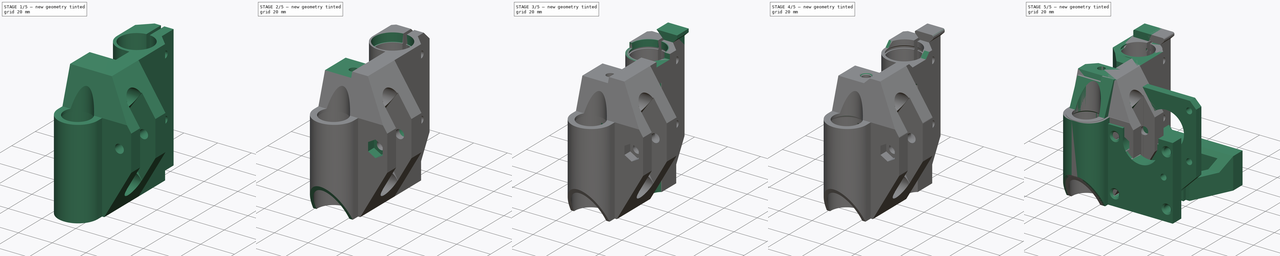
[diagram: build sequence overview — one tinted view per stage of 5, left to right]
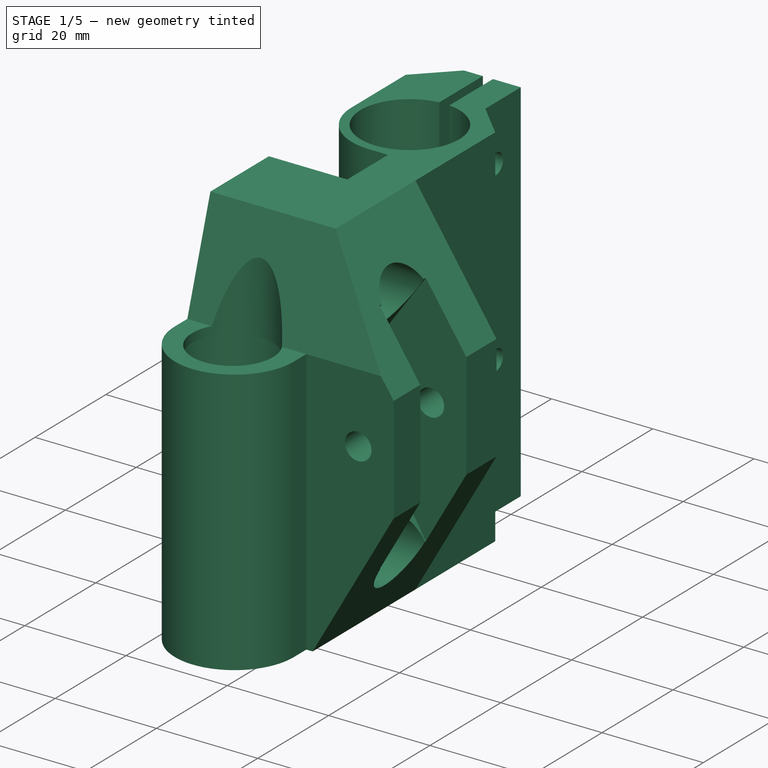
[diagram: stage 1 of 5 — iso view after this stage's code; geometry added in this stage tinted green]
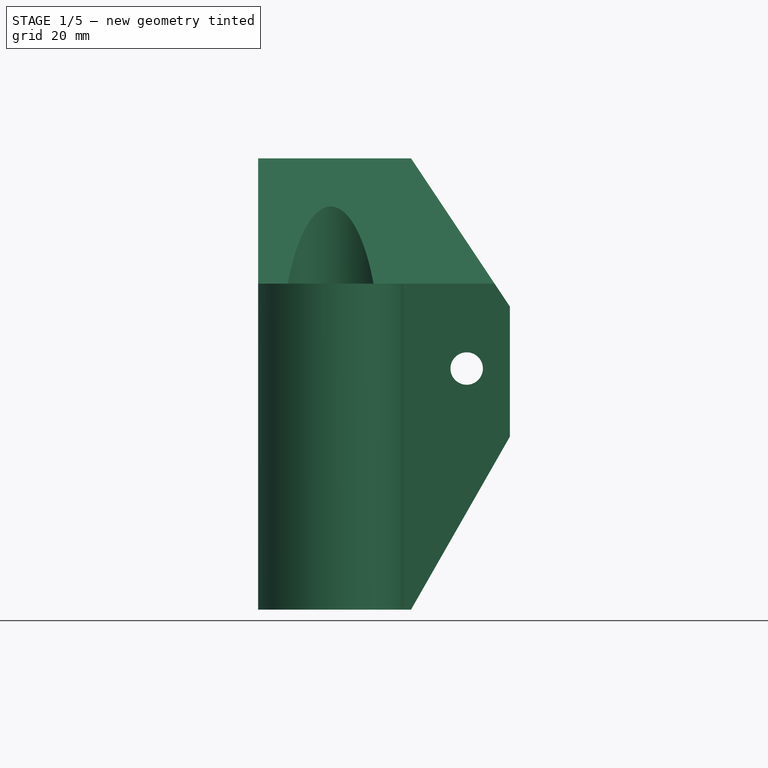
[diagram: stage 1 of 5 — front view after this stage's code; geometry added in this stage tinted green]
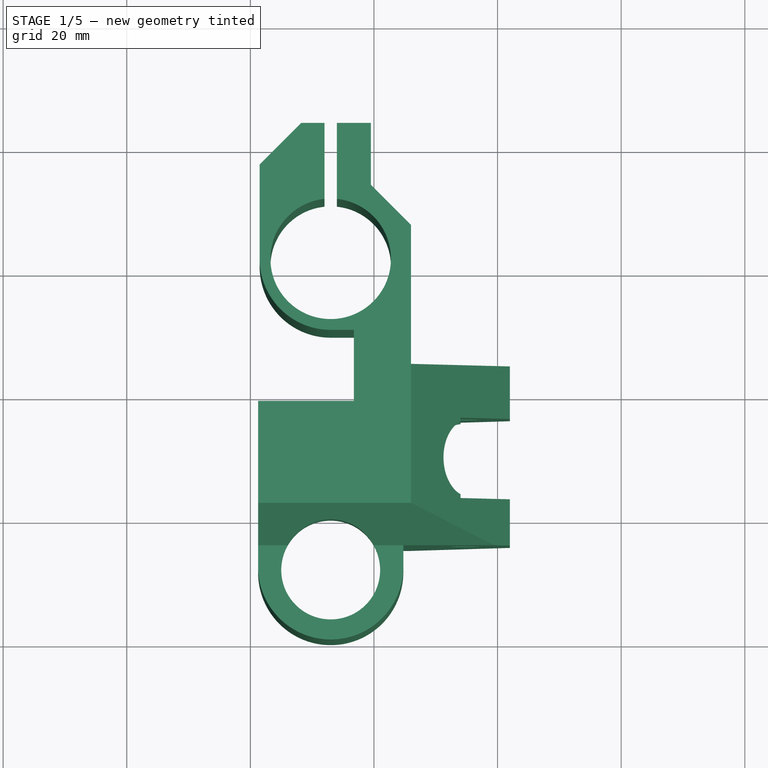
[diagram: stage 1 of 5 — top view after this stage's code; geometry added in this stage tinted green]
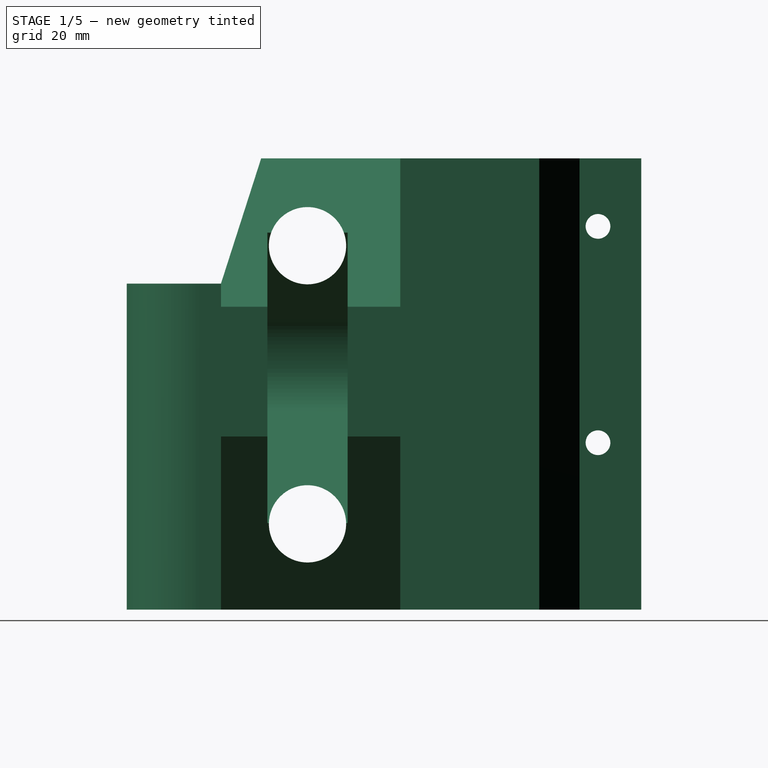
[diagram: stage 1 of 5 — right view after this stage's code; geometry added in this stage tinted green]
FCSTD DOCUMENT  (FreeCAD 0.18R4 (GitTag))
Label: vr_x_idler_v4
License: CreativeCommons Attribution-ShareAlike
LicenseURL: http://creativecommons.org/licenses/by-sa/4.0/
objects: Sketcher::SketchObject×35, PartDesign::Pocket×28, PartDesign::Pad×7, PartDesign::Chamfer×6, PartDesign::Fillet×5, App::FeaturePython×4, Part::FeaturePython×3, Part::Mirroring×1, PartDesign::Body×1
note: 121 computed .brp shape members not serialized (recipe doc carries the construction recipe); baked Part::Feature solids carry a one-line shape summary decoded from their .brp

FEATURE [App::FeaturePython] axialConstraint01  label="axialConstraint01__vr_x_idler_v3_01"  # a2plus constraint (typed FeaturePython)
  Object1 = Part__Mirroring
  Object2 = vr_x_idler_v3_01
  SubElement1 = Face23
  SubElement2 = Face11
  Type = axial
  directionConstraint = 0
  lockRotation = false
FEATURE [App::FeaturePython] axialConstraint01_mirror  label="axialConstraint01__vr_x_motor_v4_1_01 (Mirror #1)"  # a2plus constraint (typed FeaturePython)
  Object1 = Part__Mirroring
  Object2 = vr_x_idler_v3_01
  SubElement1 = Face23
  SubElement2 = Face11
  Type = axial
  directionConstraint = 0
  lockRotation = false
FEATURE [App::FeaturePython] planeConstraint01  label="planeConstraint01__vr_x_idler_v3_01"  # a2plus constraint (typed FeaturePython)
  Object1 = Part__Mirroring
  Object2 = vr_x_idler_v3_01
  SubElement1 = Face4
  SubElement2 = Face23
  Type = plane
  directionConstraint = 0
  offset = 0
FEATURE [App::FeaturePython] planeConstraint01_mirror  label="planeConstraint01__vr_x_motor_v4_1_01 (Mirror #1)"  # a2plus constraint (typed FeaturePython)
  Object1 = Part__Mirroring
  Object2 = vr_x_idler_v3_01
  SubElement1 = Face4
  SubElement2 = Face23
  Type = plane
  directionConstraint = 0
  offset = 0
FEATURE [Sketcher::SketchObject] Sketch
  MapMode = 5
  Support = -> [XY_Plane]
  sketch-geometry (22):
    g0: LineSegment StartX=1.5 StartY=76.75 StartZ=0 EndX=8.25 EndY=83.5 EndZ=0
    g1: LineSegment StartX=8.25 StartY=83.5 StartZ=0 EndX=19.5 EndY=83.5 EndZ=0
    g2: LineSegment StartX=19.5 StartY=83.5 StartZ=0 EndX=19.5 EndY=73.5 EndZ=0
    g3: LineSegment StartX=19.5 StartY=73.5 StartZ=0 EndX=26 EndY=67 EndZ=0
    g4: LineSegment StartX=26 StartY=67 StartZ=0 EndX=26 EndY=44.5 EndZ=0
    g5: LineSegment StartX=26 StartY=44.5 StartZ=0 EndX=42 EndY=44.5 EndZ=0
    g6: LineSegment StartX=42 StartY=44.5 StartZ=0 EndX=42 EndY=36 EndZ=0
    g7: LineSegment StartX=42 StartY=36 StartZ=0 EndX=34.25 EndY=36 EndZ=0
    g8: LineSegment StartX=34.25 StartY=36 StartZ=0 EndX=34.25 EndY=23 EndZ=0
    g9: LineSegment StartX=34.25 StartY=23 StartZ=0 EndX=42 EndY=23 EndZ=0
    g10: LineSegment StartX=42 StartY=23 StartZ=0 EndX=42 EndY=15.5 EndZ=0
    g11: LineSegment StartX=42 StartY=15.5 StartZ=0 EndX=24.75 EndY=15.5 EndZ=0
    g12: LineSegment StartX=24.75 StartY=15.5 StartZ=0 EndX=24.75 EndY=12 EndZ=0
    g13: LineSegment [constr] StartX=24.75 StartY=12 StartZ=0 EndX=1.25 EndY=12 EndZ=0
    g14: LineSegment StartX=1.25 StartY=12 StartZ=0 EndX=1.25 EndY=38.5 EndZ=0
    g15: LineSegment StartX=1.25 StartY=38.5 StartZ=0 EndX=16.75 EndY=38.5 EndZ=0
    g16: LineSegment StartX=16.75 StartY=38.5 StartZ=0 EndX=16.75 EndY=50 EndZ=0
    g17: LineSegment StartX=16.75 StartY=50 StartZ=0 EndX=13 EndY=50 EndZ=0
    g18: LineSegment StartX=1.5 StartY=61.5 StartZ=0 EndX=1.5 EndY=76.75 EndZ=0
    g19: ArcOfCircle CenterX=13 CenterY=61.5 CenterZ=0 NormalX=0 NormalY=0 NormalZ=1 AngleXU=0 Radius=11.5 StartAngle=3.14159 EndAngle=4.71239
    g20: Circle [constr] CenterX=13 CenterY=61.5 CenterZ=0 NormalX=0 NormalY=0 NormalZ=1 AngleXU=0 Radius=8
    g21: ArcOfCircle CenterX=13 CenterY=12 CenterZ=0 NormalX=0 NormalY=0 NormalZ=1 AngleXU=0 Radius=11.75 StartAngle=3.14159 EndAngle=6.28319
  constraints (64):
    c: Coincident(g0,g1)
    c: Coincident(g1,g2)
    c: Coincident(g2,g3)
    c: Coincident(g3,g4)
    c: Coincident(g4,g5)
    c: Coincident(g5,g6)
    c: Coincident(g6,g7)
    c: Coincident(g7,g8)
    c: Coincident(g8,g9)
    c: Coincident(g9,g10)
    c: Coincident(g10,g11)
    c: Coincident(g11,g12)
    c: Coincident(g12,g13)
    c: Coincident(g13,g14)
    c: Coincident(g15,g16)
    c: Coincident(g16,g17)
    c: Coincident(g18,g0)
    c: Vertical(g18)
    c: Vertical(g4)
    c: Vertical(g6)
    c: Vertical(g8)
    c: Vertical(g10)
    c: Vertical(g12)
    c: Vertical(g14)
    c: Vertical(g16)
    c: Vertical(g2)
    c: Horizontal(g1)
    c: Horizontal(g15)
    c: Horizontal(g13)
    c: Horizontal(g9)
    c: Horizontal(g7)
    c: Horizontal(g11)
    c: Horizontal(g5)
    c: Horizontal(g17)
    c: Tangent(g17,g19) = 1.5708
    c: DistanceX(g18) = 1.5
    c: Tangent(g18,g19) = 1.5708
    c: Coincident(g19,g20)
    c: DistanceX(g19) = 13
    c: DistanceY(g19) = 61.5
    c: DistanceX(g17,g17) = 3.75
    c: DistanceY(g16,g16) = 11.5
    c: DistanceX(g13,g13) = 23.5
    c: DistanceY(g12,g12) = 3.5
    c: Coincident(g12,g21)
    c: Coincident(g13,g21)
    c: PointOnObject(g21,g13)
    c: DistanceX(g11,g11) = 17.25
    c: DistanceY(g10,g10) = 7.5
    c: DistanceX(g9,g9) = 7.75
    c: DistanceY(g8,g8) = 13
    c: Equal(g7,g9)
    c: DistanceY(g6,g6) = 8.5
    c: DistanceX(g5,g5) = 16
    c: DistanceY(g4,g4) = 22.5
    c: Angle(g3) = -0.785398
    c: DistanceY(g3,g3) = 6.5
    c: DistanceY(g2,g2) = 10
    c: Angle(g0) = 0.785398
    c: DistanceX(g1,g1) = 11.25
    c: Radius(g20) = 8
    c: DistanceX(g21) = 13
    c: DistanceY(g21) = 12
    c: Coincident(g14,g15)
FEATURE [PartDesign::Pad] Pad
  Length = 73
  Length2 = 100
  Profile = -> Sketch
  Type = 0
FEATURE [Sketcher::SketchObject] Sketch001
  ExternalGeometry = -> [Pad]
  MapMode = 5
  Placement = pos=(0,15.5,0) rot=(1,0,0;1.5708rad)
  Support = -> [Pad]
  sketch-geometry (7):
    g0: Circle CenterX=35 CenterY=39 CenterZ=0 NormalX=0 NormalY=0 NormalZ=1 AngleXU=0 Radius=2.625
    g1: LineSegment StartX=26 StartY=73 StartZ=0 EndX=42 EndY=49 EndZ=0
    g2: LineSegment StartX=42 StartY=49 StartZ=0 EndX=42 EndY=73 EndZ=0
    g3: LineSegment StartX=42 StartY=73 StartZ=0 EndX=26 EndY=73 EndZ=0
    g4: LineSegment StartX=42 StartY=28 StartZ=0 EndX=26 EndY=0 EndZ=0
    g5: LineSegment StartX=26 StartY=0 StartZ=0 EndX=42 EndY=0 EndZ=0
    g6: LineSegment StartX=42 StartY=0 StartZ=0 EndX=42 EndY=28 EndZ=0
  constraints (19):
    c: Coincident(g1,g2)
    c: Coincident(g2,g3)
    c: Coincident(g3,g1)
    c: Coincident(g4,g5)
    c: Coincident(g5,g6)
    c: Coincident(g4,g6)
    c: Coincident(g5,g-3)
    c: Coincident(g2,g-3)
    c: Horizontal(g3)
    c: Horizontal(g5)
    c: Vertical(g6)
    c: Vertical(g2)
    c: DistanceX(g3,g3) = 16
    c: DistanceY(g2,g2) = 24
    c: DistanceY(g6,g6) = 28
    c: DistanceX(g5,g5) = 16
    c: DistanceX(g0) = 35
    c: DistanceY(g0) = 39
    c: Radius(g0) = 2.625
FEATURE [Sketcher::SketchObject] Sketch002
  MapMode = 5
  Placement = pos=(0,36,0) rot=(1,0,0;1.5708rad)
  sketch-geometry (6):
    g0: ArcOfCircle CenterX=35.1452 CenterY=39.0307 CenterZ=0 NormalX=0 NormalY=0 NormalZ=1 AngleXU=0 Radius=13.69 StartAngle=2.522 EndAngle=3.67388
    g1: LineSegment StartX=24 StartY=46.9805 StartZ=0 EndX=34 EndY=61 EndZ=0
    g2: LineSegment StartX=34 StartY=61 StartZ=0 EndX=42 EndY=49 EndZ=0
    g3: LineSegment StartX=42 StartY=49 StartZ=0 EndX=42 EndY=28 EndZ=0
    g4: LineSegment StartX=42 StartY=28 StartZ=0 EndX=34 EndY=14 EndZ=0
    g5: LineSegment StartX=34 StartY=14 StartZ=0 EndX=23.3493 EndY=32.0829 EndZ=0
  constraints (17):
    c: Coincident(g1,g2)
    c: Coincident(g2,g3)
    c: Coincident(g3,g4)
    c: Coincident(g4,g5)
    c: Tangent(g0,g5) = 1.5708
    c: Tangent(g0,g1) = 1.5708
    c: Angle(g1) = 0.951204
    c: DistanceX(g4,g4) = 8
    c: DistanceX(g2,g2) = 8
    c: DistanceX(g1) = 34
    c: DistanceY(g1) = 61
    c: DistanceX(g1,g1) = 10
    c: DistanceY(g2,g2) = 12
    c: DistanceY(g3,g3) = 21
    c: DistanceY(g4,g4) = 14
    c: DistanceX(g3) = 42
    c: Radius(g0) = 13.69
FEATURE [Sketcher::SketchObject] Sketch003
  MapMode = 5
  Placement = pos=(42,0,0) rot=(0.57735,0.57735,0.57735;2.0944rad)
  sketch-geometry (8):
    g0: LineSegment StartX=0 StartY=52.75 StartZ=0 EndX=15.5 EndY=52.75 EndZ=0
    g1: LineSegment StartX=15.5 StartY=52.75 StartZ=0 EndX=22 EndY=73 EndZ=0
    g2: LineSegment StartX=22 StartY=73 StartZ=0 EndX=0 EndY=73 EndZ=0
    g3: LineSegment StartX=0 StartY=73 StartZ=0 EndX=0 EndY=52.75 EndZ=0
    g4: Circle CenterX=29.5 CenterY=58.875 CenterZ=0 NormalX=0 NormalY=0 NormalZ=1 AngleXU=0 Radius=6.25
    g5: Circle CenterX=29.5 CenterY=13.875 CenterZ=0 NormalX=0 NormalY=0 NormalZ=1 AngleXU=0 Radius=6.25
    g6: Circle CenterX=76.5 CenterY=27 CenterZ=0 NormalX=0 NormalY=0 NormalZ=1 AngleXU=0 Radius=2
    g7: Circle CenterX=76.5 CenterY=62 CenterZ=0 NormalX=0 NormalY=0 NormalZ=1 AngleXU=0 Radius=2
  constraints (24):
    c: Coincident(g0,g1)
    c: Coincident(g2,g3)
    c: Horizontal(g2)
    c: Horizontal(g0)
    c: Vertical(g3)
    c: Coincident(g0,g3)
    c: DistanceY(g0) = 52.75
    c: PointOnObject(g0,g-2)
    c: Coincident(g1,g2)
    c: DistanceX(g2,g2) = 22
    c: DistanceX(g5) = 29.5
    c: DistanceY(g5) = 13.875
    c: DistanceX(g5,g4) = 0
    c: DistanceY(g5,g4) = 45
    c: DistanceX(g6) = 76.5
    c: DistanceY(g6) = 27
    c: DistanceX(g6,g7) = 0
    c: DistanceY(g6,g7) = 35
    c: Radius(g6) = 2
    c: Equal(g6,g7)
    c: Equal(g4,g5)
    c: Radius(g5) = 6.25
    c: DistanceX(g1,g1) = 6.5
    c: DistanceY(g3,g3) = 20.25
FEATURE [Sketcher::SketchObject] Sketch004
  MapMode = 5
  Placement = pos=(0,0,73) rot=(0,0,1;0rad)
  sketch-geometry (2):
    g0: Circle CenterX=13 CenterY=61.5 CenterZ=0 NormalX=0 NormalY=0 NormalZ=1 AngleXU=0 Radius=8
    g1: Circle CenterX=13 CenterY=11.5 CenterZ=0 NormalX=0 NormalY=0 NormalZ=1 AngleXU=0 Radius=8
  constraints (6):
    c: DistanceX(g0) = 13
    c: DistanceY(g0) = 61.5
    c: Radius(g0) = 8
    c: DistanceX(g1,g0) = 0
    c: DistanceY(g1,g0) = 50
    c: Radius(g1) = 8
FEATURE [Sketcher::SketchObject] Sketch005
  MapMode = 5
  Placement = pos=(0,0,73) rot=(0,0,1;0rad)
  sketch-geometry (1):
    g0: Circle CenterX=13 CenterY=61.5 CenterZ=0 NormalX=0 NormalY=0 NormalZ=1 AngleXU=0 Radius=9.75
  constraints (3):
    c: Radius(g0) = 9.75
    c: DistanceX(g0) = 13
    c: DistanceY(g0) = 61.5
FEATURE [Sketcher::SketchObject] Sketch007
  MapMode = 5
  Placement = pos=(0,0,0) rot=(1,0,0;3.14159rad)
  sketch-geometry (1):
    g0: Circle CenterX=13 CenterY=-11.5 CenterZ=0 NormalX=0 NormalY=0 NormalZ=1 AngleXU=0 Radius=9.75
  constraints (3):
    c: Radius(g0) = 9.75
    c: DistanceX(g0) = 13
    c: DistanceY(g0) = -11.5
FEATURE [Sketcher::SketchObject] Sketch008
  MapMode = 5
  Placement = pos=(0,0,20) rot=(1,0,0;3.14159rad)
  sketch-geometry (1):
    g0: Circle CenterX=13 CenterY=-11.5 CenterZ=0 NormalX=0 NormalY=0 NormalZ=1 AngleXU=0 Radius=10.5
  constraints (3):
    c: Radius(g0) = 10.5
    c: DistanceX(g0) = 13
    c: DistanceY(g0) = -11.5
FEATURE [Sketcher::SketchObject] Sketch009
  MapMode = 5
  Placement = pos=(0,0,20) rot=(1,0,0;3.14159rad)
  sketch-geometry (1):
    g0: Circle CenterX=13 CenterY=-11.5 CenterZ=0 NormalX=0 NormalY=0 NormalZ=1 AngleXU=0 Radius=9.75
  constraints (3):
    c: Radius(g0) = 9.75
    c: DistanceX(g0) = 13
    c: DistanceY(g0) = -11.5
FEATURE [Sketcher::SketchObject] Sketch010
  MapMode = 5
  Placement = pos=(24.75,0,0) rot=(0.57735,0.57735,0.57735;2.0944rad)
  sketch-geometry (3):
    g0: LineSegment StartX=11 StartY=0 StartZ=0 EndX=0 EndY=19.0526 EndZ=0
    g1: LineSegment StartX=0 StartY=19.0526 StartZ=0 EndX=0 EndY=0 EndZ=0
    g2: LineSegment StartX=0 StartY=0 StartZ=0 EndX=11 EndY=0 EndZ=0
  constraints (8):
    c: Coincident(g0,g1)
    c: Coincident(g1,g2)
    c: Coincident(g0,g2)
    c: Coincident(g1,g-1)
    c: Vertical(g1)
    c: Horizontal(g2)
    c: DistanceX(g2,g2) = 11
    c: Angle(g0) = 2.0944
FEATURE [Sketcher::SketchObject] Sketch011
  MapMode = 5
  Placement = pos=(0,15.5,0) rot=(1,0,0;1.5708rad)
  sketch-geometry (7):
    g0: LineSegment StartX=35 StartY=44 StartZ=0 EndX=30.6699 EndY=41.5 EndZ=0
    g1: LineSegment StartX=30.6699 StartY=41.5 StartZ=0 EndX=30.6699 EndY=36.5 EndZ=0
    g2: LineSegment StartX=30.6699 StartY=36.5 StartZ=0 EndX=35 EndY=34 EndZ=0
    g3: LineSegment StartX=35 StartY=34 StartZ=0 EndX=39.3301 EndY=36.5 EndZ=0
    g4: LineSegment StartX=39.3301 StartY=36.5 StartZ=0 EndX=39.3301 EndY=41.5 EndZ=0
    g5: LineSegment StartX=39.3301 StartY=41.5 StartZ=0 EndX=35 EndY=44 EndZ=0
    g6: Circle [constr] CenterX=35 CenterY=39 CenterZ=0 NormalX=0 NormalY=0 NormalZ=1 AngleXU=0 Radius=5
  constraints (17):
    c: Coincident(g0,g1)
    c: Coincident(g1,g2)
    c: Coincident(g2,g3)
    c: Coincident(g3,g4)
    c: Coincident(g4,g5)
    c: Coincident(g5,g0)
    c: Equal(g0, g1-g5) x5
    c: PointOnObject(g0,g6)
    c: PointOnObject(g1,g6)
    c: PointOnObject(g2,g6)
    c: PointOnObject(g3,g6)
    c: PointOnObject(g4,g6)
    c: PointOnObject(g5,g6)
    c: Vertical(g4)
    c: Radius(g6) = 5
    c: DistanceX(g6) = 35
    c: DistanceY(g6) = 39
FEATURE [Sketcher::SketchObject] Sketch012
  MapMode = 5
  Placement = pos=(0,44.5,0) rot=(0,0.707107,0.707107;3.14159rad)
  sketch-geometry (1):
    g0: Circle CenterX=-35 CenterY=39 CenterZ=0 NormalX=0 NormalY=0 NormalZ=1 AngleXU=0 Radius=5
  constraints (3):
    c: Radius(g0) = 5
    c: DistanceX(g0) = -35
    c: DistanceY(g0) = 39
FEATURE [Sketcher::SketchObject] Sketch013
  MapMode = 5
  Placement = pos=(19.5,0,0) rot=(0.57735,0.57735,0.57735;2.0944rad)
  sketch-geometry (6):
    g0: LineSegment StartX=73.5 StartY=0 StartZ=0 EndX=83.5 EndY=18 EndZ=0
    g1: LineSegment StartX=83.5 StartY=18 StartZ=0 EndX=83.5 EndY=0 EndZ=0
    g2: LineSegment StartX=83.5 StartY=0 StartZ=0 EndX=73.5 EndY=0 EndZ=0
    g3: LineSegment StartX=78.5 StartY=73 StartZ=0 EndX=83.5 EndY=68 EndZ=0
    g4: LineSegment StartX=83.5 StartY=68 StartZ=0 EndX=83.5 EndY=73 EndZ=0
    g5: LineSegment StartX=83.5 StartY=73 StartZ=0 EndX=78.5 EndY=73 EndZ=0
  constraints (18):
    c: Coincident(g0,g1)
    c: Coincident(g1,g2)
    c: Coincident(g2,g0)
    c: Vertical(g1)
    c: DistanceY(g1,g1) = 18
    c: Coincident(g3,g4)
    c: Coincident(g4,g5)
    c: Coincident(g5,g3)
    c: Vertical(g4)
    c: Horizontal(g5)
    c: Angle(g3) = -0.785398
    c: DistanceY(g4,g4) = 5
    c: DistanceX(g0) = 73.5
    c: DistanceY(g0) = 0
    c: DistanceX(g4) = 83.5
    c: DistanceY(g4) = 73
    c: DistanceX(g2,g2) = 10
    c: Horizontal(g2)
FEATURE [Sketcher::SketchObject] Sketch014
  MapMode = 5
  Placement = pos=(1.25,0,0) rot=(0.57735,-0.57735,-0.57735;2.0944rad)
  sketch-geometry (10):
    g0: LineSegment StartX=-29.75 StartY=46 StartZ=0 EndX=-38.5 EndY=54.75 EndZ=0
    g1: LineSegment StartX=-38.5 StartY=18 StartZ=0 EndX=-29.75 EndY=26.75 EndZ=0
    g2: LineSegment StartX=-29.75 StartY=26.75 StartZ=0 EndX=-29.75 EndY=46 EndZ=0
    g3: LineSegment StartX=-49.997 StartY=73 StartZ=0 EndX=-21.997 EndY=73 EndZ=0
    g4: LineSegment StartX=-21.997 StartY=73 StartZ=0 EndX=-21.037 EndY=70 EndZ=0
    g5: LineSegment StartX=-21.037 StartY=70 StartZ=0 EndX=-38.5 EndY=70 EndZ=0
    g6: LineSegment StartX=-38.5 StartY=70 StartZ=0 EndX=-38.5 EndY=65 EndZ=0
    g7: LineSegment StartX=-38.5 StartY=65 StartZ=0 EndX=-49.997 EndY=65 EndZ=0
    g8: LineSegment StartX=-49.997 StartY=65 StartZ=0 EndX=-49.997 EndY=73 EndZ=0
    g9: LineSegment StartX=-38.5 StartY=54.75 StartZ=0 EndX=-38.5 EndY=18 EndZ=0
  constraints (30):
    c: Coincident(g1,g2)
    c: Coincident(g0,g2)
    c: Vertical(g2)
    c: Angle(g0) = 2.35619
    c: Angle(g1) = 0.785398
    c: DistanceY(g1) = 26.75
    c: DistanceY(g2,g2) = 19.25
    c: Coincident(g3,g4)
    c: Coincident(g4,g5)
    c: Coincident(g5,g6)
    c: Coincident(g6,g7)
    c: Coincident(g7,g8)
    c: Coincident(g8,g3)
    c: Vertical(g8)
    c: Vertical(g6)
    c: Horizontal(g5)
    c: Horizontal(g7)
    c: DistanceY(g8,g8) = 8
    c: DistanceY(g6,g6) = 5
    c: DistanceX(g4) = -21.037
    c: DistanceY(g4) = 70
    c: DistanceY(g4,g4) = 3
    c: DistanceX(g4,g4) = 0.96
    c: DistanceX(g3,g3) = 28
    c: Coincident(g1,g9)
    c: Coincident(g0,g9)
    c: DistanceX(g0) = -38.5
    c: Vertical(g9)
    c: DistanceY(g9,g9) = 36.75
    c: DistanceX(g0,g6) = 0
FEATURE [Sketcher::SketchObject] Sketch015
  MapMode = 5
  Placement = pos=(1.5,0,0) rot=(0.57735,-0.57735,-0.57735;2.0944rad)
  sketch-geometry (14):
    g0: LineSegment StartX=-76.5 StartY=65.35 StartZ=0 EndX=-79.4012 EndY=63.675 EndZ=0
    g1: LineSegment StartX=-79.4012 StartY=63.675 StartZ=0 EndX=-79.4012 EndY=60.325 EndZ=0
    g2: LineSegment StartX=-79.4012 StartY=60.325 StartZ=0 EndX=-76.5 EndY=58.65 EndZ=0
    g3: LineSegment StartX=-76.5 StartY=58.65 StartZ=0 EndX=-73.5988 EndY=60.325 EndZ=0
    g4: LineSegment StartX=-73.5988 StartY=60.325 StartZ=0 EndX=-73.5988 EndY=63.675 EndZ=0
    g5: LineSegment StartX=-73.5988 StartY=63.675 StartZ=0 EndX=-76.5 EndY=65.35 EndZ=0
    g6: Circle [constr] CenterX=-76.5 CenterY=62 CenterZ=0 NormalX=0 NormalY=0 NormalZ=1 AngleXU=0 Radius=3.35
    g7: LineSegment StartX=-76.5 StartY=30.35 StartZ=0 EndX=-79.4012 EndY=28.675 EndZ=0
    g8: LineSegment StartX=-79.4012 StartY=28.675 StartZ=0 EndX=-79.4012 EndY=25.325 EndZ=0
    g9: LineSegment StartX=-79.4012 StartY=25.325 StartZ=0 EndX=-76.5 EndY=23.65 EndZ=0
    g10: LineSegment StartX=-76.5 StartY=23.65 StartZ=0 EndX=-73.5988 EndY=25.325 EndZ=0
    g11: LineSegment StartX=-73.5988 StartY=25.325 StartZ=0 EndX=-73.5988 EndY=28.675 EndZ=0
    g12: LineSegment StartX=-73.5988 StartY=28.675 StartZ=0 EndX=-76.5 EndY=30.35 EndZ=0
    g13: Circle [constr] CenterX=-76.5 CenterY=27 CenterZ=0 NormalX=0 NormalY=0 NormalZ=1 AngleXU=0 Radius=3.35
  constraints (34):
    c: Coincident(g0,g1)
    c: Coincident(g1,g2)
    c: Coincident(g2,g3)
    c: Coincident(g3,g4)
    c: Coincident(g4,g5)
    c: Coincident(g5,g0)
    c: Equal(g0, g1-g5) x5
    c: PointOnObject(g0,g6)
    c: PointOnObject(g1,g6)
    c: PointOnObject(g2,g6)
    c: PointOnObject(g3,g6)
    c: PointOnObject(g4,g6)
    c: PointOnObject(g5,g6)
    c: Coincident(g7,g8)
    c: Coincident(g8,g9)
    c: Coincident(g9,g10)
    c: Coincident(g10,g11)
    c: Coincident(g11,g12)
    c: Coincident(g12,g7)
    c: Equal(g7, g8-g12) x5
    c: PointOnObject(g7,g13)
    c: PointOnObject(g8,g13)
    c: PointOnObject(g9,g13)
    c: PointOnObject(g10,g13)
    c: PointOnObject(g11,g13)
    c: PointOnObject(g12,g13)
    c: Vertical(g4)
    c: Vertical(g11)
    c: Radius(g13) = 3.35
    c: Equal(g13,g6)
    c: DistanceX(g6) = -76.5
    c: DistanceY(g6) = 62
    c: DistanceX(g6,g13) = 0
    c: DistanceY(g6,g13) = -35
FEATURE [Sketcher::SketchObject] Sketch016
  MapMode = 5
  Placement = pos=(0,0,73) rot=(0,0,1;0rad)
  sketch-geometry (1):
    g0: Circle CenterX=13 CenterY=61.5 CenterZ=0 NormalX=0 NormalY=0 NormalZ=1 AngleXU=0 Radius=10.5
  constraints (3):
    c: Radius(g0) = 10.5
    c: DistanceX(g0) = 13
    c: DistanceY(g0) = 61.5
FEATURE [Sketcher::SketchObject] Sketch017
  MapMode = 5
  Placement = pos=(0,0,73) rot=(0,0,1;0rad)
  sketch-geometry (6):
    g0: LineSegment [constr] StartX=12 StartY=71.9523 StartZ=0 EndX=14 EndY=71.9523 EndZ=0
    g1: LineSegment StartX=14 StartY=71.9523 StartZ=0 EndX=14 EndY=71.1986 EndZ=0
    g2: LineSegment [constr] StartX=14 StartY=71.1986 StartZ=0 EndX=12 EndY=71.1986 EndZ=0
    g3: LineSegment StartX=12 StartY=71.1986 StartZ=0 EndX=12 EndY=71.9523 EndZ=0
    g4: ArcOfCircle CenterX=13 CenterY=61.5 CenterZ=0 NormalX=0 NormalY=0 NormalZ=1 AngleXU=0 Radius=9.75 StartAngle=1.67354 EndAngle=7.75124
    g5: ArcOfCircle CenterX=13 CenterY=61.5 CenterZ=0 NormalX=0 NormalY=0 NormalZ=1 AngleXU=0 Radius=10.5 StartAngle=1.66618 EndAngle=7.7586
  constraints (18):
    c: Coincident(g0,g1)
    c: Coincident(g1,g2)
    c: Coincident(g2,g3)
    c: Coincident(g3,g0)
    c: Horizontal(g0)
    c: Horizontal(g2)
    c: Vertical(g1)
    c: Vertical(g3)
    c: Coincident(g0,g5)
    c: Coincident(g1,g4)
    c: Coincident(g2,g4)
    c: Coincident(g0,g5)
    c: DistanceX(g2,g2) = 2
    c: DistanceX(g4) = 13
    c: DistanceY(g4) = 61.5
    c: Coincident(g4,g5)
    c: Radius(g4) = 9.75
    c: Radius(g5) = 10.5
FEATURE [Sketcher::SketchObject] Sketch018
  MapMode = 5
  Placement = pos=(0,0,70) rot=(0,0,1;0rad)
  sketch-geometry (1):
    g0: Circle CenterX=12.25 CenterY=29.5 CenterZ=0 NormalX=0 NormalY=0 NormalZ=1 AngleXU=0 Radius=2.35
  constraints (3):
    c: DistanceX(g0) = 12.25
    c: DistanceY(g0) = 29.5
    c: Radius(g0) = 2.35
FEATURE [Sketcher::SketchObject] Sketch019
  MapMode = 5
  Placement = pos=(0,0,0) rot=(1,0,0;3.14159rad)
  sketch-geometry (1):
    g0: Circle CenterX=12.25 CenterY=-29.5 CenterZ=0 NormalX=0 NormalY=0 NormalZ=1 AngleXU=0 Radius=2.35
  constraints (3):
    c: Radius(g0) = 2.35
    c: DistanceX(g0) = 12.25
    c: DistanceY(g0) = -29.5
FEATURE [Sketcher::SketchObject] Sketch020
  MapMode = 5
  Placement = pos=(16.75,0,0) rot=(0.57735,-0.57735,-0.57735;2.0944rad)
  sketch-geometry (8):
    g0: Circle CenterX=-47 CenterY=45 CenterZ=0 NormalX=0 NormalY=0 NormalZ=1 AngleXU=0 Radius=2.35
    g1: Circle CenterX=-37.5 CenterY=45 CenterZ=0 NormalX=0 NormalY=0 NormalZ=1 AngleXU=0 Radius=2.35
    g2: Circle CenterX=-37.5 CenterY=33 CenterZ=0 NormalX=0 NormalY=0 NormalZ=1 AngleXU=0 Radius=2.35
    g3: Circle CenterX=-47 CenterY=33 CenterZ=0 NormalX=0 NormalY=0 NormalZ=1 AngleXU=0 Radius=2.35
    g4: LineSegment [constr] StartX=-47 StartY=45 StartZ=0 EndX=-37.5 EndY=45 EndZ=0
    g5: LineSegment [constr] StartX=-37.5 StartY=45 StartZ=0 EndX=-37.5 EndY=33 EndZ=0
    g6: LineSegment [constr] StartX=-37.5 StartY=33 StartZ=0 EndX=-47 EndY=33 EndZ=0
    g7: LineSegment [constr] StartX=-47 StartY=33 StartZ=0 EndX=-47 EndY=45 EndZ=0
  constraints (20):
    c: Coincident(g4,g5)
    c: Coincident(g5,g6)
    c: Coincident(g6,g7)
    c: Coincident(g7,g4)
    c: Horizontal(g4)
    c: Horizontal(g6)
    c: Vertical(g5)
    c: Vertical(g7)
    c: Coincident(g2,g5)
    c: Coincident(g0,g4)
    c: Coincident(g1,g4)
    c: Coincident(g3,g6)
    c: DistanceX(g0) = -47
    c: DistanceY(g0) = 45
    c: DistanceX(g4,g4) = 9.5
    c: DistanceY(g5,g5) = 12
    c: Radius(g1) = 2.35
    c: Equal(g1,g2)
    c: Equal(g1,g0)
    c: Equal(g1,g3)
FEATURE [PartDesign::Pocket] Pocket
  BaseFeature = -> Pad
  Length = 5
  Length2 = 100
  Profile = -> Sketch001
  Type = 1
FEATURE [PartDesign::Pocket] Pocket001
  BaseFeature = -> Pocket
  Length = 13
  Length2 = 100
  Profile = -> Sketch002
  Reversed = true
  Type = 0
FEATURE [PartDesign::Pocket] Pocket002
  BaseFeature = -> Pocket001
  Length = 5
  Length2 = 100
  Profile = -> Sketch003
  Type = 1
FEATURE [PartDesign::Pocket] Pocket003
  BaseFeature = -> Pocket002
  Length = 5
  Length2 = 100
  Profile = -> Sketch004
  Type = 1
FEATURE [PartDesign::Pocket] Pocket004
  BaseFeature = -> Pocket003
  Length = 5
  Length2 = 100
  Profile = -> Sketch005
  Type = 1
FEATURE [Sketcher::SketchObject] Sketch006
  ExternalGeometry = -> [Pocket004]
  MapMode = 5
  Placement = pos=(0,0,73) rot=(0,0,1;0rad)
  sketch-geometry (4):
    g0: LineSegment StartX=12 StartY=83.5 StartZ=0 EndX=14 EndY=83.5 EndZ=0
    g1: LineSegment StartX=14 StartY=83.5 StartZ=0 EndX=14 EndY=71.1986 EndZ=0
    g2: LineSegment StartX=14 StartY=71.1986 StartZ=0 EndX=12 EndY=71.1986 EndZ=0
    g3: LineSegment StartX=12 StartY=71.1986 StartZ=0 EndX=12 EndY=83.5 EndZ=0
  constraints (12):
    c: Coincident(g0,g1)
    c: Coincident(g1,g2)
    c: Coincident(g2,g3)
    c: Coincident(g3,g0)
    c: Horizontal(g0)
    c: Horizontal(g2)
    c: Vertical(g1)
    c: Vertical(g3)
    c: DistanceX(g2,g2) = 2
    c: DistanceY(g0) = 83.5
    c: PointOnObject(g2,g-3)
    c: PointOnObject(g1,g-3)
FEATURE [PartDesign::Pocket] Pocket005
  BaseFeature = -> Pocket004
  Length = 5
  Length2 = 100
  Profile = -> Sketch006
  Type = 1
FEATURE [PartDesign::Pocket] Pocket006
  BaseFeature = -> Pocket005
  Length = 20
  Length2 = 100
  Profile = -> Sketch007
  Type = 0
FEATURE [PartDesign::Pocket] Pocket007
  BaseFeature = -> Pocket006
  Length = 1
  Length2 = 100
  Profile = -> Sketch008
  Reversed = true
  Type = 0
FEATURE [PartDesign::Pocket] Pocket008
  BaseFeature = -> Pocket007
  Length = 31
  Length2 = 100
  Profile = -> Sketch009
  Type = 0
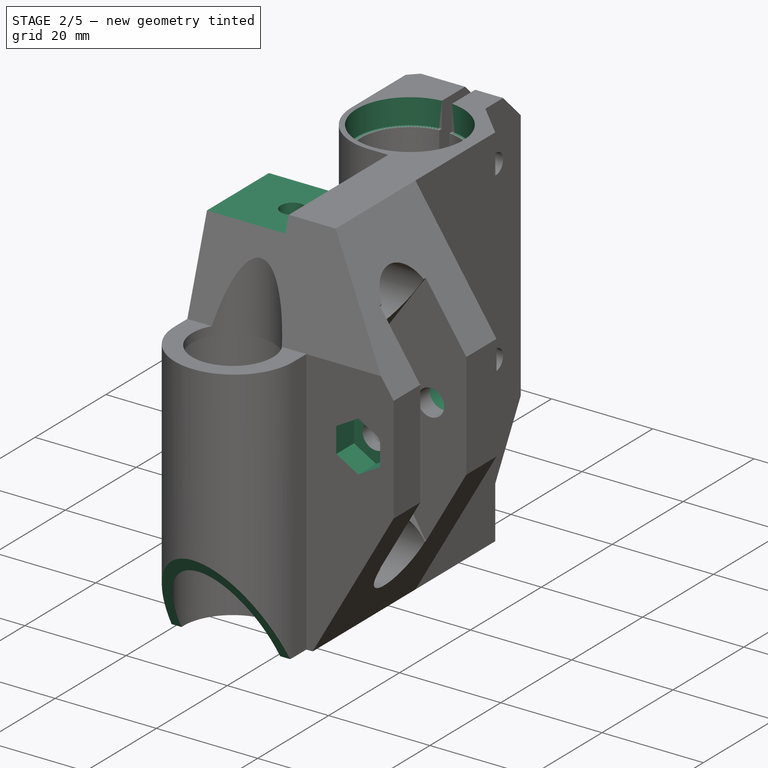
[diagram: stage 2 of 5 — iso view after this stage's code; geometry added in this stage tinted green]
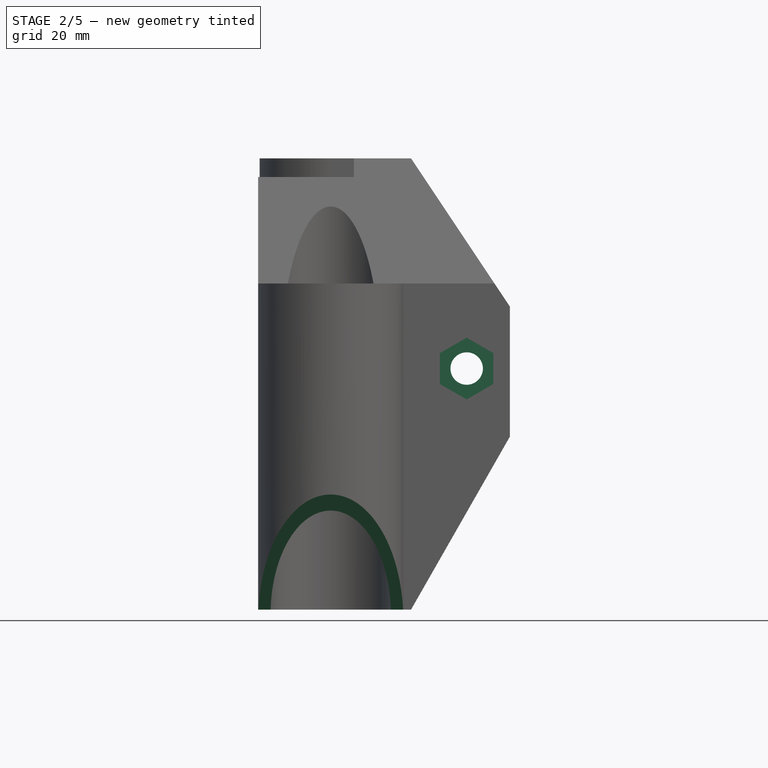
[diagram: stage 2 of 5 — front view after this stage's code; geometry added in this stage tinted green]
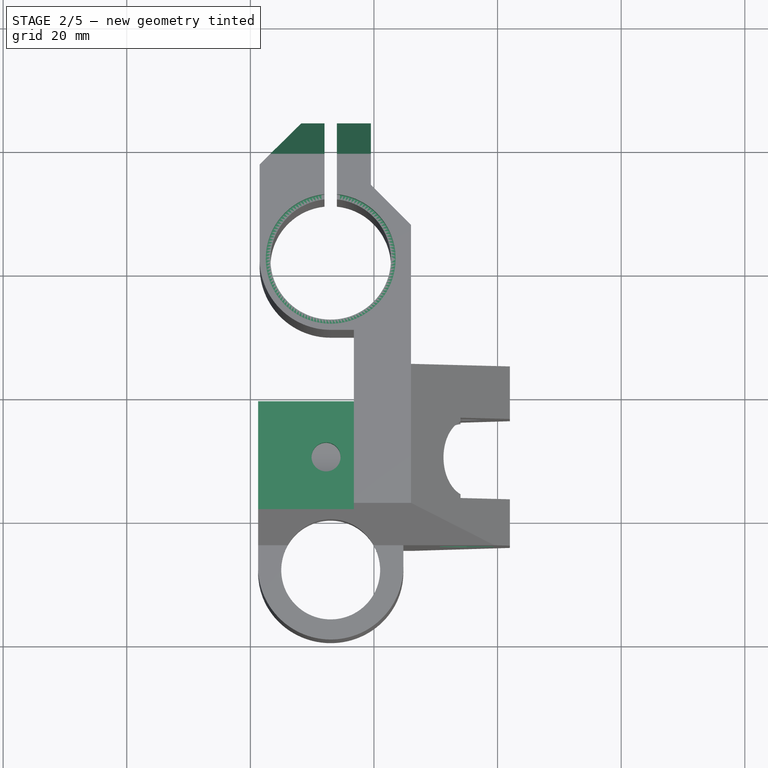
[diagram: stage 2 of 5 — top view after this stage's code; geometry added in this stage tinted green]
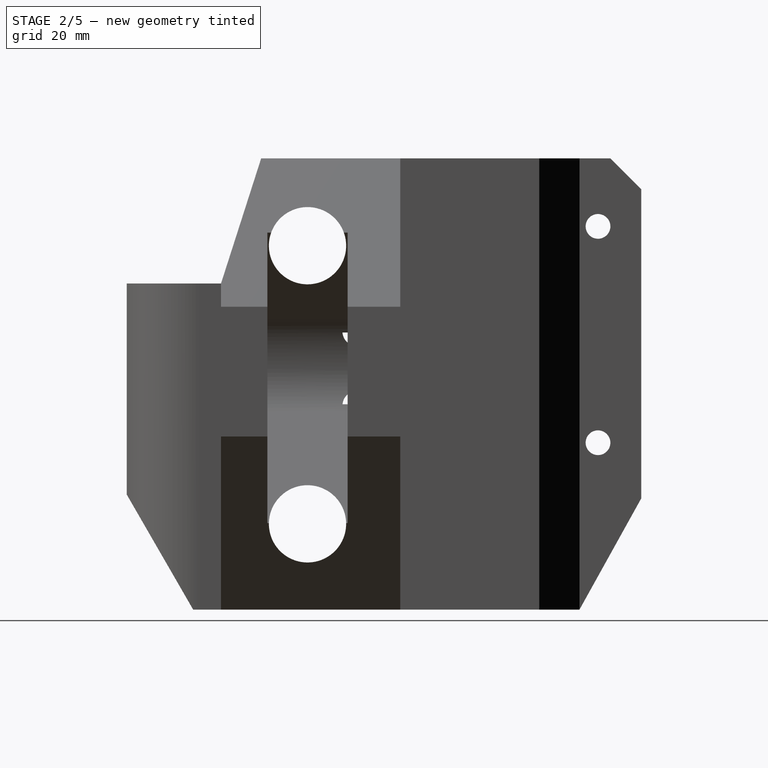
[diagram: stage 2 of 5 — right view after this stage's code; geometry added in this stage tinted green]
FEATURE [PartDesign::Pocket] Pocket009
  BaseFeature = -> Pocket008
  Length = 5
  Length2 = 100
  Profile = -> Sketch010
  Type = 1
FEATURE [PartDesign::Pocket] Pocket010
  BaseFeature = -> Pocket009
  Length = 5
  Length2 = 100
  Profile = -> Sketch011
  Type = 0
FEATURE [PartDesign::Pocket] Pocket011
  BaseFeature = -> Pocket010
  Length = 5
  Length2 = 100
  Profile = -> Sketch012
  Type = 0
FEATURE [PartDesign::Pocket] Pocket012
  BaseFeature = -> Pocket011
  Length = 5
  Length2 = 100
  Profile = -> Sketch013
  Type = 1
FEATURE [PartDesign::Pocket] Pocket013
  BaseFeature = -> Pocket012
  Length = 15.5
  Length2 = 100
  Profile = -> Sketch014
  Type = 0
FEATURE [PartDesign::Pocket] Pocket014
  BaseFeature = -> Pocket013
  Length = 8
  Length2 = 100
  Profile = -> Sketch015
  Type = 0
FEATURE [PartDesign::Pocket] Pocket015
  BaseFeature = -> Pocket014
  Length = 5
  Length2 = 100
  Profile = -> Sketch016
  Type = 0
FEATURE [PartDesign::Pocket] Pocket016
  BaseFeature = -> Pocket015
  Length = 6
  Length2 = 100
  Profile = -> Sketch020
  Type = 0
FEATURE [PartDesign::Pocket] Pocket017
  BaseFeature = -> Pocket016
  Length = 6
  Length2 = 100
  Profile = -> Sketch018
  Type = 0
FEATURE [PartDesign::Pocket] Pocket018
  BaseFeature = -> Pocket017
  Length = 9
  Length2 = 100
  Profile = -> Sketch019
  Type = 0
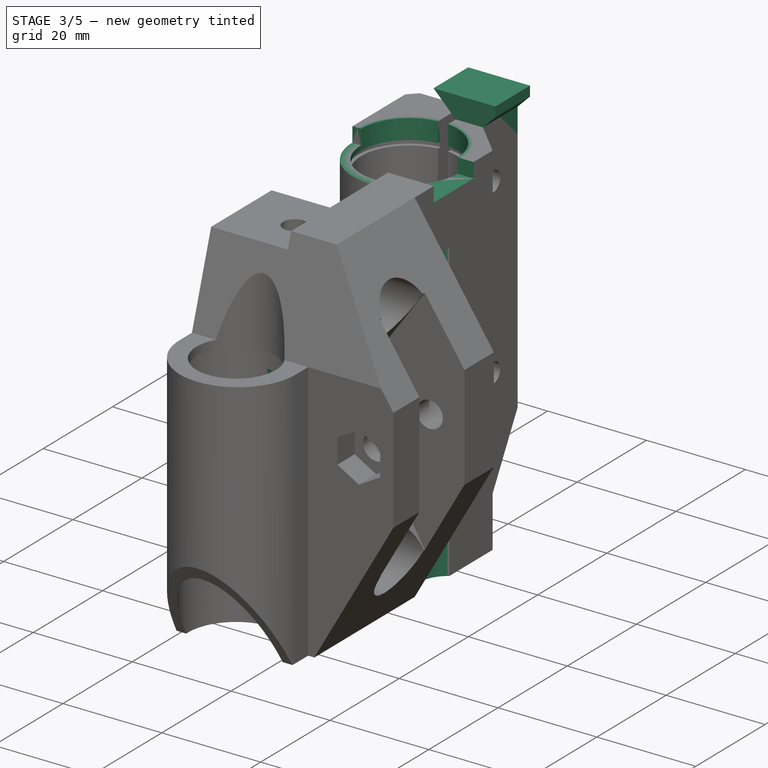
[diagram: stage 3 of 5 — iso view after this stage's code; geometry added in this stage tinted green]
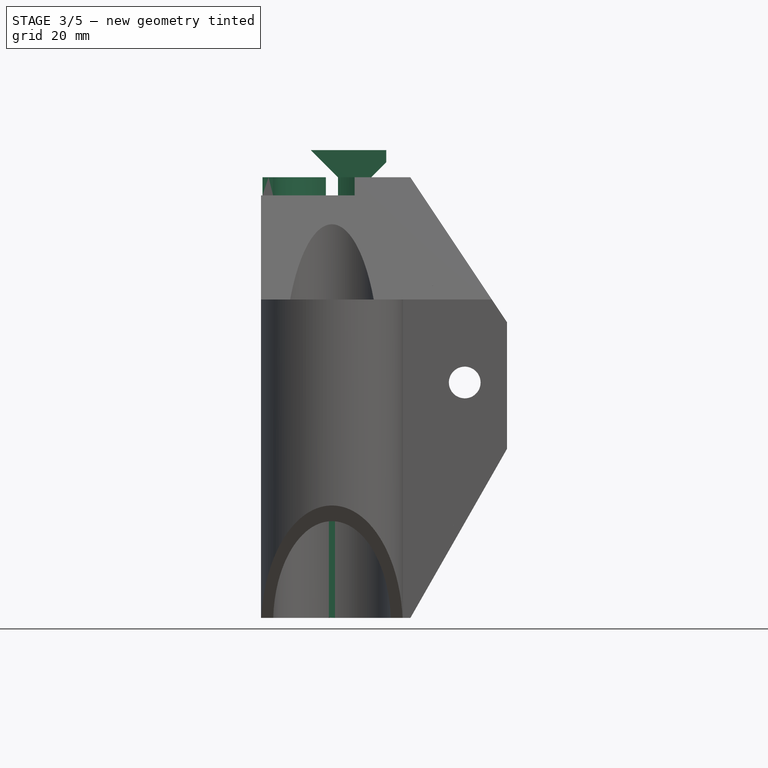
[diagram: stage 3 of 5 — front view after this stage's code; geometry added in this stage tinted green]
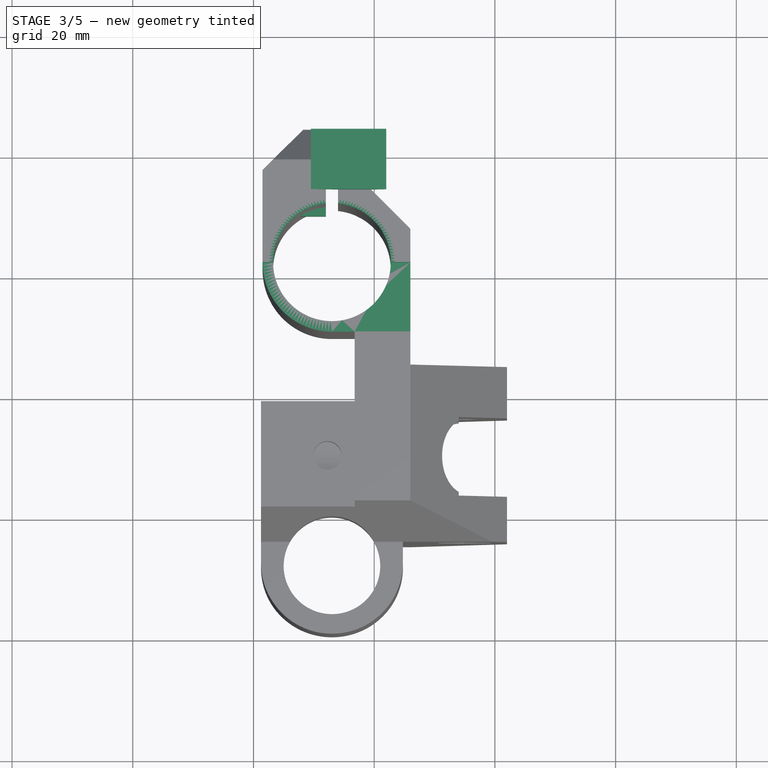
[diagram: stage 3 of 5 — top view after this stage's code; geometry added in this stage tinted green]
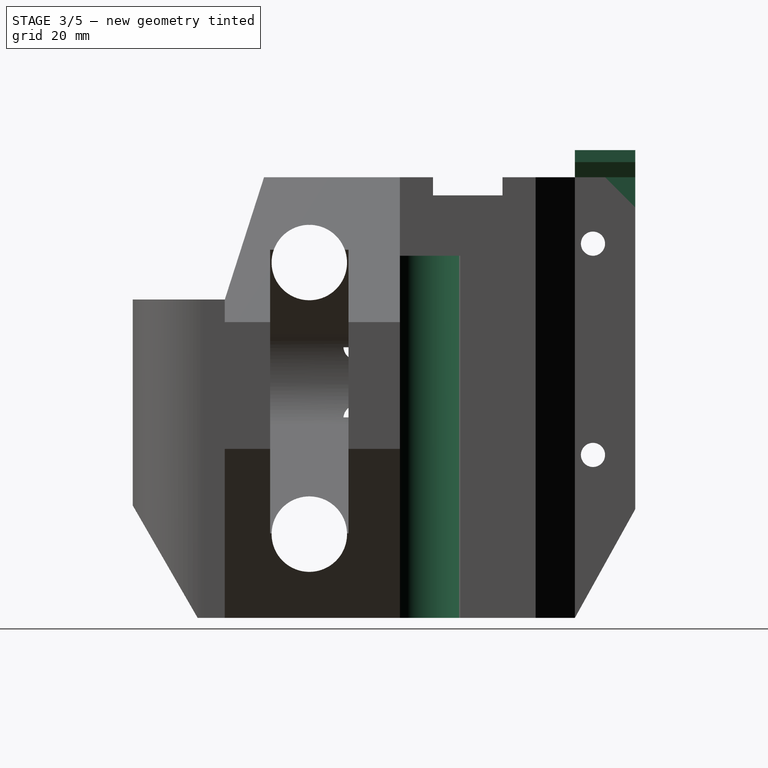
[diagram: stage 3 of 5 — right view after this stage's code; geometry added in this stage tinted green]
FEATURE [PartDesign::Pad] Pad001
  BaseFeature = -> Pocket018
  Length = 4
  Length2 = 100
  Profile = -> Sketch017
  Reversed = true
  Type = 0
FEATURE [Sketcher::SketchObject] Sketch021
  ExternalGeometry = -> [Pad001]
  MapMode = 5
  Placement = pos=(0,0,0) rot=(1,0,0;3.14159rad)
  Support = -> [Pad001]
  sketch-geometry (1):
    g0: Circle CenterX=13 CenterY=-61.5 CenterZ=0 NormalX=0 NormalY=0 NormalZ=1 AngleXU=0 Radius=10.5
  constraints (2):
    c: Coincident(g0,g-4)
    c: Radius(g0) = 10.5
FEATURE [PartDesign::Pocket] Pocket019
  BaseFeature = -> Pad001
  Length = 2
  Length2 = 100
  Profile = -> Sketch021
  Type = 0
FEATURE [Sketcher::SketchObject] Sketch022
  ExternalGeometry = -> [Pocket019]
  MapMode = 5
  Placement = pos=(0,0,0) rot=(1,0,0;3.14159rad)
  Support = -> [Pocket019]
  sketch-geometry (6):
    g0: ArcOfCircle CenterX=13 CenterY=-61.5 CenterZ=0 NormalX=0 NormalY=0 NormalZ=1 AngleXU=0 Radius=9.75 StartAngle=4.81513 EndAngle=10.8928
    g1: ArcOfCircle CenterX=13 CenterY=-61.5 CenterZ=0 NormalX=0 NormalY=0 NormalZ=1 AngleXU=0 Radius=10.5 StartAngle=4.80777 EndAngle=10.9002
    g2: LineSegment [constr] StartX=12 StartY=-71.1986 StartZ=0 EndX=14 EndY=-71.1986 EndZ=0
    g3: LineSegment StartX=14 StartY=-71.1986 StartZ=0 EndX=14 EndY=-71.9523 EndZ=0
    g4: LineSegment [constr] StartX=14 StartY=-71.9523 StartZ=0 EndX=12 EndY=-71.9523 EndZ=0
    g5: LineSegment StartX=12 StartY=-71.9523 StartZ=0 EndX=12 EndY=-71.1986 EndZ=0
  constraints (18):
    c: Coincident(g0,g1)
    c: Coincident(g2,g3)
    c: Coincident(g3,g4)
    c: Coincident(g4,g5)
    c: Coincident(g5,g2)
    c: Horizontal(g2)
    c: Horizontal(g4)
    c: Vertical(g3)
    c: Vertical(g5)
    c: Coincident(g0,g2)
    c: Coincident(g1,g3)
    c: Coincident(g0,g2)
    c: DistanceX(g0) = 13
    c: DistanceY(g0) = -61.5
    c: DistanceX(g4,g4) = 2
    c: Radius(g0) = 9.75
    c: Radius(g1) = 10.5
    c: Coincident(g1,g4)
FEATURE [PartDesign::Pad] Pad002
  BaseFeature = -> Pocket019
  Length = 1
  Length2 = 100
  Profile = -> Sketch022
  Reversed = true
  Type = 0
FEATURE [Sketcher::SketchObject] Sketch023
  ExternalGeometry = -> [Pad002]
  MapMode = 5
  Placement = pos=(12,0,0) rot=(0.57735,0.57735,0.57735;2.0944rad)
  Support = -> [Pad002]
  sketch-geometry (4):
    g0: LineSegment StartX=71.1986 StartY=31 StartZ=0 EndX=69.6986 EndY=32.5 EndZ=0
    g1: LineSegment StartX=69.6986 StartY=32.5 StartZ=0 EndX=69.6986 EndY=37.5 EndZ=0
    g2: LineSegment StartX=69.6986 StartY=37.5 StartZ=0 EndX=71.1986 EndY=39 EndZ=0
    g3: LineSegment StartX=71.1986 StartY=39 StartZ=0 EndX=71.1986 EndY=31 EndZ=0
  constraints (12):
    c: Coincident(g0,g1)
    c: Coincident(g1,g2)
    c: Coincident(g2,g3)
    c: Coincident(g3,g0)
    c: Vertical(g3)
    c: Vertical(g1)
    c: Angle(g0) = 2.35619
    c: Angle(g2) = 0.785398
    c: DistanceX(g0,g0) = 1.5
    c: PointOnObject(g0,g-4)
    c: DistanceY(g-4,g0) = 29
    c: DistanceY(g2,g-4) = 29
FEATURE [Sketcher::SketchObject] Sketch026
  MapMode = 5
  Placement = pos=(0,0,73) rot=(0,0,1;0rad)
  sketch-geometry (4):
    g0: LineSegment StartX=1.5 StartY=61.5 StartZ=0 EndX=26 EndY=61.5 EndZ=0
    g1: LineSegment StartX=26 StartY=61.5 StartZ=0 EndX=26 EndY=50 EndZ=0
    g2: LineSegment StartX=26 StartY=50 StartZ=0 EndX=1.5 EndY=50 EndZ=0
    g3: LineSegment StartX=1.5 StartY=50 StartZ=0 EndX=1.5 EndY=61.5 EndZ=0
  constraints (12):
    c: Coincident(g0,g1)
    c: Coincident(g1,g2)
    c: Coincident(g2,g3)
    c: Coincident(g3,g0)
    c: Horizontal(g0)
    c: Horizontal(g2)
    c: Vertical(g1)
    c: Vertical(g3)
    c: DistanceX(g0) = 26
    c: DistanceY(g0) = 61.5
    c: DistanceY(g1,g1) = 11.5
    c: DistanceX(g0,g0) = 24.5
FEATURE [PartDesign::Pad] Pad003
  BaseFeature = -> Pad002
  Length = 10
  Length2 = 100
  Profile = -> Sketch023
  Reversed = true
  Type = 0
FEATURE [PartDesign::Pocket] Pocket020
  BaseFeature = -> Pad003
  Length = 3
  Length2 = 100
  Profile = -> Sketch026
  Type = 0
FEATURE [Sketcher::SketchObject] Sketch027
  ExternalGeometry = -> [Pocket020]
  MapMode = 5
  Placement = pos=(0,83.5,0) rot=(0,0.707107,0.707107;3.14159rad)
  Support = -> [Pocket020]
  sketch-geometry (7):
    g0: LineSegment StartX=-19.5 StartY=68 StartZ=0 EndX=-19.5 EndY=73 EndZ=0
    g1: LineSegment StartX=-19.5 StartY=73 StartZ=0 EndX=-22 EndY=75.5 EndZ=0
    g2: LineSegment StartX=-22 StartY=75.5 StartZ=0 EndX=-22 EndY=77.5 EndZ=0
    g3: LineSegment StartX=-22 StartY=77.5 StartZ=0 EndX=-9.5 EndY=77.5 EndZ=0
    g4: LineSegment StartX=-14 StartY=73 StartZ=0 EndX=-14 EndY=68 EndZ=0
    g5: LineSegment StartX=-14 StartY=68 StartZ=0 EndX=-19.5 EndY=68 EndZ=0
    g6: LineSegment StartX=-9.5 StartY=77.5 StartZ=0 EndX=-14 EndY=73 EndZ=0
  constraints (20):
    c: Coincident(g0,g1)
    c: Coincident(g1,g2)
    c: Coincident(g2,g3)
    c: Coincident(g4,g5)
    c: Coincident(g0,g5)
    c: Horizontal(g5)
    c: Horizontal(g3)
    c: Vertical(g4)
    c: Vertical(g2)
    c: Vertical(g0)
    c: Angle(g1) = 2.35619
    c: Coincident(g4,g-3)
    c: Coincident(g0,g-3)
    c: DistanceY(g-4,g2) = 4.5
    c: Coincident(g0,g-4)
    c: DistanceY(g2,g2) = 2  'blarg'
    c: Equal(g4,g0)
    c: Coincident(g4,g6)
    c: Coincident(g3,g6)
    c: Angle(g6) = -2.35619
FEATURE [PartDesign::Pad] Pad004
  BaseFeature = -> Pocket020
  Length = 10
  Length2 = 100
  Profile = -> Sketch027
  Reversed = true
  Type = 0
FEATURE [Sketcher::SketchObject] Sketch029
  ExternalGeometry = -> [Pad004]
  MapMode = 5
  Placement = pos=(0,0,0) rot=(1,0,0;3.14159rad)
  Support = -> [Pad004]
  sketch-geometry (2):
    g0: ArcOfCircle CenterX=29.3166 CenterY=-49.5 CenterZ=0 NormalX=0 NormalY=0 NormalZ=1 AngleXU=0 Radius=6 StartAngle=2.15648 EndAngle=4.1267
    g1: LineSegment StartX=26 StartY=-44.5 StartZ=0 EndX=26 EndY=-54.5 EndZ=0
  constraints (6):
    c: Coincident(g0,g-3)
    c: PointOnObject(g0,g-3)
    c: Coincident(g0,g1)
    c: Coincident(g0,g1)
    c: Radius(g0) = 6
    c: DistanceY(g1,g1) = 10
FEATURE [PartDesign::Pocket] Pocket021
  BaseFeature = -> Pad004
  Length = 60
  Length2 = 100
  Profile = -> Sketch029
  Type = 0
FEATURE [Sketcher::SketchObject] Sketch030
  ExternalGeometry = -> [Pocket021]
  MapMode = 5
  Placement = pos=(0,0,0) rot=(1,0,0;3.14159rad)
  Support = -> [Pocket021]
  sketch-geometry (4):
    g0: LineSegment StartX=12.5 StartY=-21.2372 StartZ=0 EndX=13.5 EndY=-21.2372 EndZ=0
    g1: LineSegment StartX=13.5 StartY=-21.2372 StartZ=0 EndX=13.5 EndY=-22.2372 EndZ=0
    g2: LineSegment StartX=13.5 StartY=-22.2372 StartZ=0 EndX=12.5 EndY=-22.2372 EndZ=0
    g3: LineSegment StartX=12.5 StartY=-22.2372 StartZ=0 EndX=12.5 EndY=-21.2372 EndZ=0
  constraints (12):
    c: Coincident(g0,g1)
    c: Coincident(g1,g2)
    c: Coincident(g2,g3)
    c: Coincident(g3,g0)
    c: Horizontal(g0)
    c: Horizontal(g2)
    c: Vertical(g1)
    c: Vertical(g3)
    c: PointOnObject(g0,g-3)
    c: PointOnObject(g0,g-3)
    c: DistanceX(g2,g2) = 1
    c: Equal(g1,g2)
FEATURE [PartDesign::Pocket] Pocket022
  BaseFeature = -> Pocket021
  Length = 47
  Length2 = 100
  Profile = -> Sketch030
  Type = 0
FEATURE [Sketcher::SketchObject] Sketch031
  ExternalGeometry = -> [Pocket022]
  MapMode = 5
  Placement = pos=(0,0,0) rot=(1,0,0;3.14159rad)
  Support = -> [Pocket022]
  sketch-geometry (4):
    g0: LineSegment StartX=12.5 StartY=-22.2372 StartZ=0 EndX=12.6 EndY=-22.2372 EndZ=0
    g1: LineSegment StartX=12.6 StartY=-22.2372 StartZ=0 EndX=12.6 EndY=-27.1633 EndZ=0
    g2: LineSegment StartX=12.6 StartY=-27.1633 StartZ=0 EndX=12.5 EndY=-27.1633 EndZ=0
    g3: LineSegment StartX=12.5 StartY=-27.1633 StartZ=0 EndX=12.5 EndY=-22.2372 EndZ=0
  constraints (11):
    c: Coincident(g0,g1)
    c: Coincident(g1,g2)
    c: Coincident(g2,g3)
    c: Coincident(g3,g0)
    c: Horizontal(g0)
    c: Horizontal(g2)
    c: Vertical(g1)
    c: Vertical(g3)
    c: Coincident(g0,g-3)
    c: PointOnObject(g2,g-4)
    c: DistanceX(g2,g2) = 0.1
FEATURE [PartDesign::Chamfer] Chamfer
  Base = -> Pocket022 [Edge46]
  BaseFeature = -> Pocket022
  Size = 2
FEATURE [PartDesign::Pocket] Pocket023
  BaseFeature = -> Chamfer
  Length = 0.1
  Length2 = 100
  Profile = -> Sketch031
  Type = 0
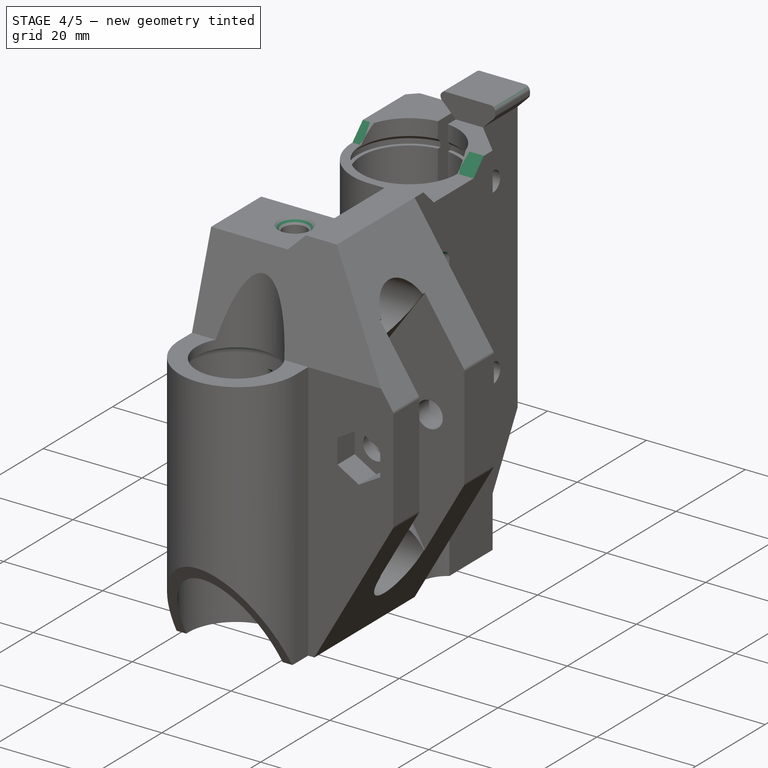
[diagram: stage 4 of 5 — iso view after this stage's code; geometry added in this stage tinted green]
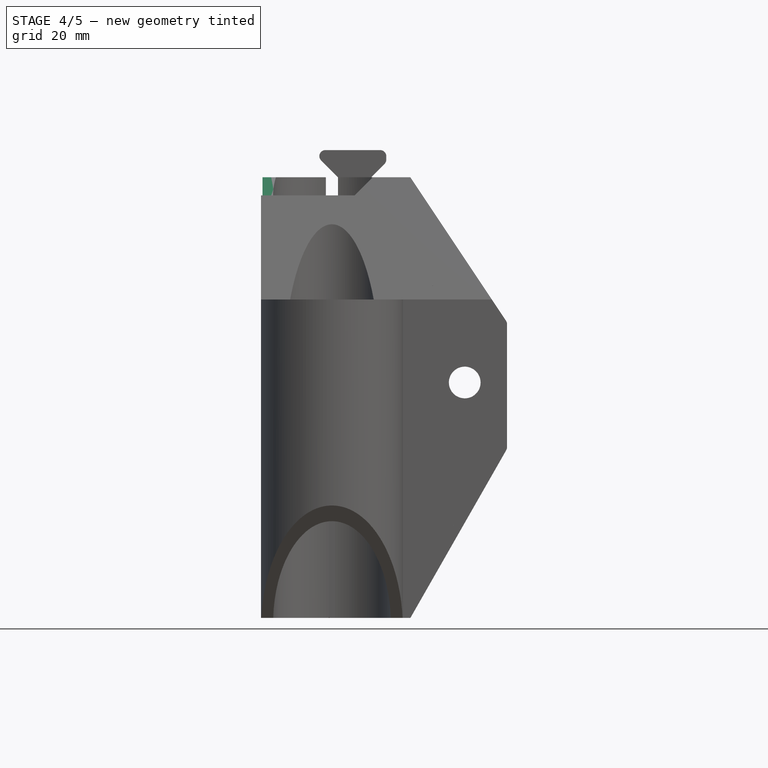
[diagram: stage 4 of 5 — front view after this stage's code; geometry added in this stage tinted green]
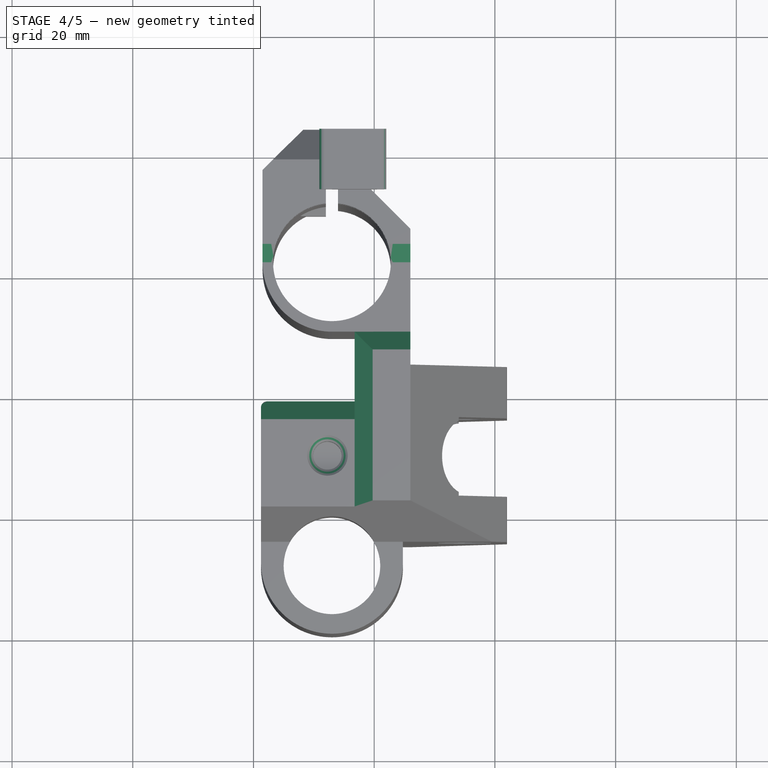
[diagram: stage 4 of 5 — top view after this stage's code; geometry added in this stage tinted green]
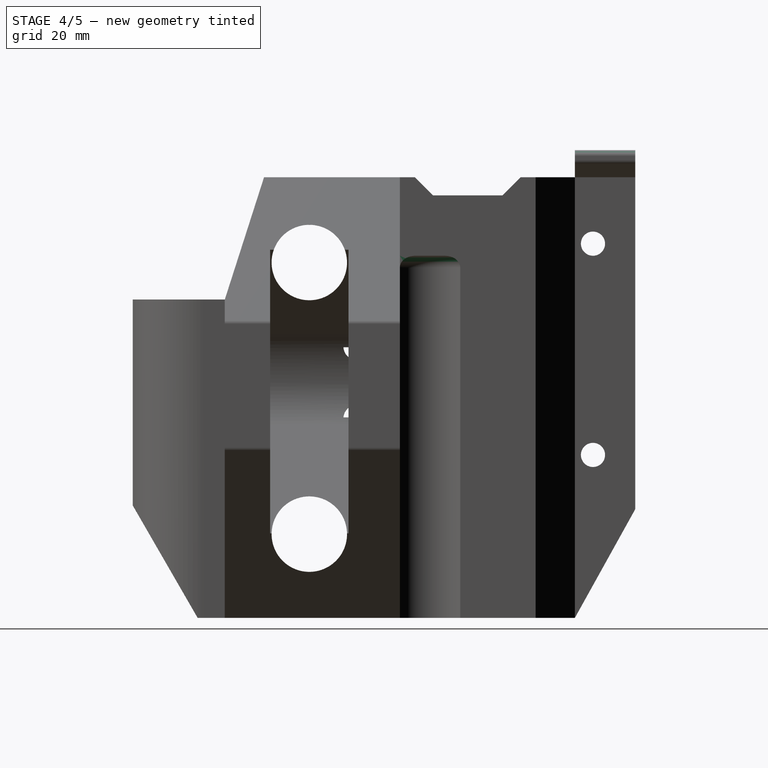
[diagram: stage 4 of 5 — right view after this stage's code; geometry added in this stage tinted green]
FEATURE [PartDesign::Chamfer] Chamfer001
  Base = -> Pocket023 [Edge286,Edge399,Edge191]
  BaseFeature = -> Pocket023
  Size = 0.74
FEATURE [PartDesign::Chamfer] Chamfer002
  Base = -> Chamfer001 [Edge19]
  BaseFeature = -> Chamfer001
  Size = 0.9
FEATURE [PartDesign::Fillet] Fillet
  Base = -> Chamfer002 [Edge18]
  BaseFeature = -> Chamfer002
  Radius = 1.74
FEATURE [PartDesign::Chamfer] Chamfer003
  Base = -> Fillet [Edge349,Edge280,Edge272,Edge398]
  BaseFeature = -> Fillet
  Size = 2.99
FEATURE [PartDesign::Chamfer] Chamfer004
  Base = -> Chamfer003 [Edge27]
  BaseFeature = -> Chamfer003
  Size = 2.99
FEATURE [PartDesign::Chamfer] Chamfer005
  Base = -> Chamfer004 [Edge301,Edge252,Edge251]
  BaseFeature = -> Chamfer004
  Size = 1
FEATURE [PartDesign::Fillet] Fillet001
  Base = -> Chamfer005 [Edge22,Edge43,Edge37,Edge27]
  BaseFeature = -> Chamfer005
  Radius = 5
FEATURE [PartDesign::Fillet] Fillet002
  Base = -> Fillet001 [Edge4]
  BaseFeature = -> Fillet001
  Radius = 1
FEATURE [PartDesign::Fillet] Fillet003
  Base = -> Fillet002 [Edge501,Edge500,Edge493,Edge111,Edge119,Edge265,Edge261]
  BaseFeature = -> Fillet002
  Radius = 1
FEATURE [PartDesign::Fillet] Fillet004
  Base = -> Fillet003 [Edge191]
  BaseFeature = -> Fillet003
  Radius = 1.99
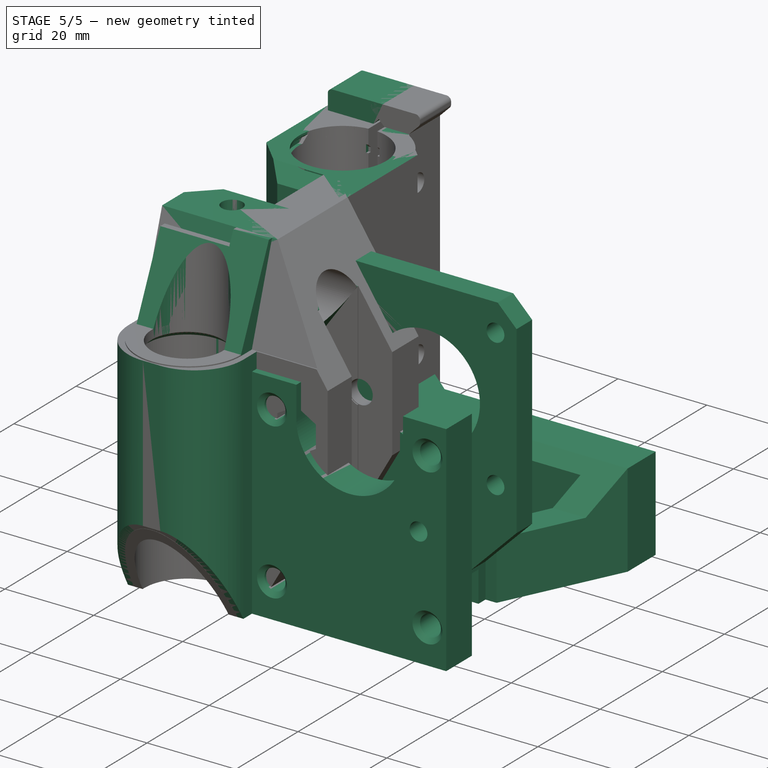
[diagram: stage 5 of 5 — iso view after this stage's code; geometry added in this stage tinted green]
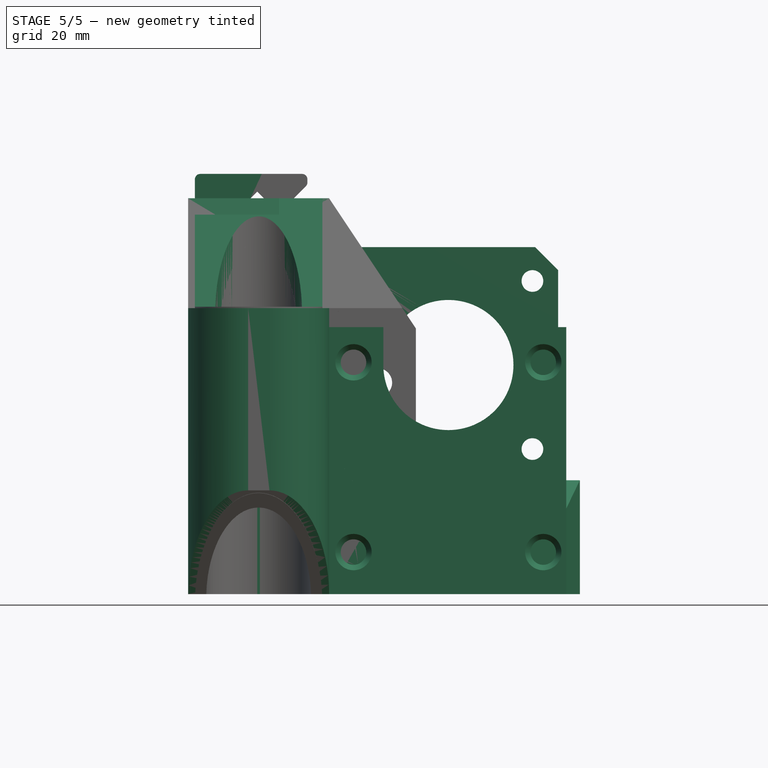
[diagram: stage 5 of 5 — front view after this stage's code; geometry added in this stage tinted green]
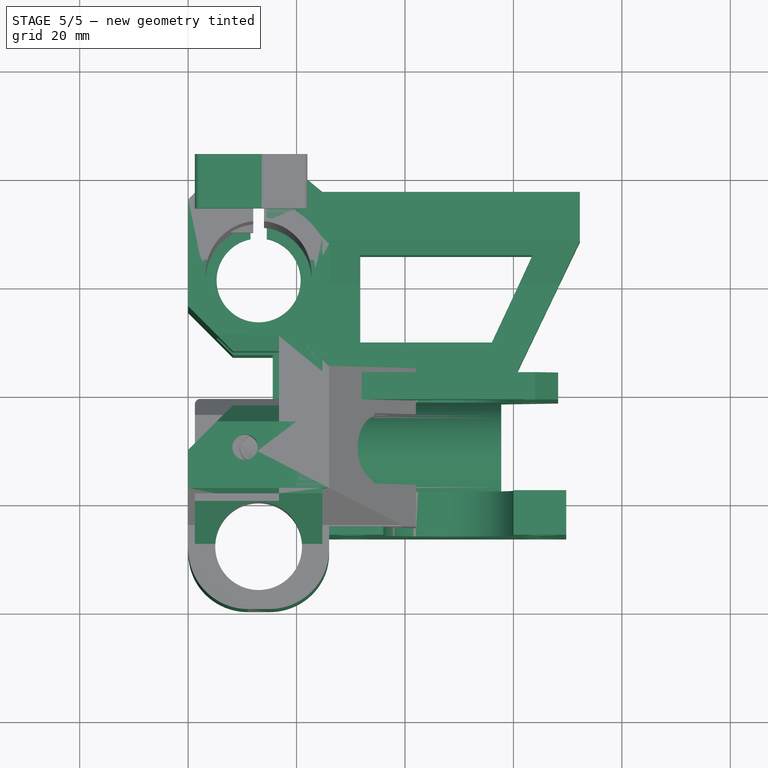
[diagram: stage 5 of 5 — top view after this stage's code; geometry added in this stage tinted green]
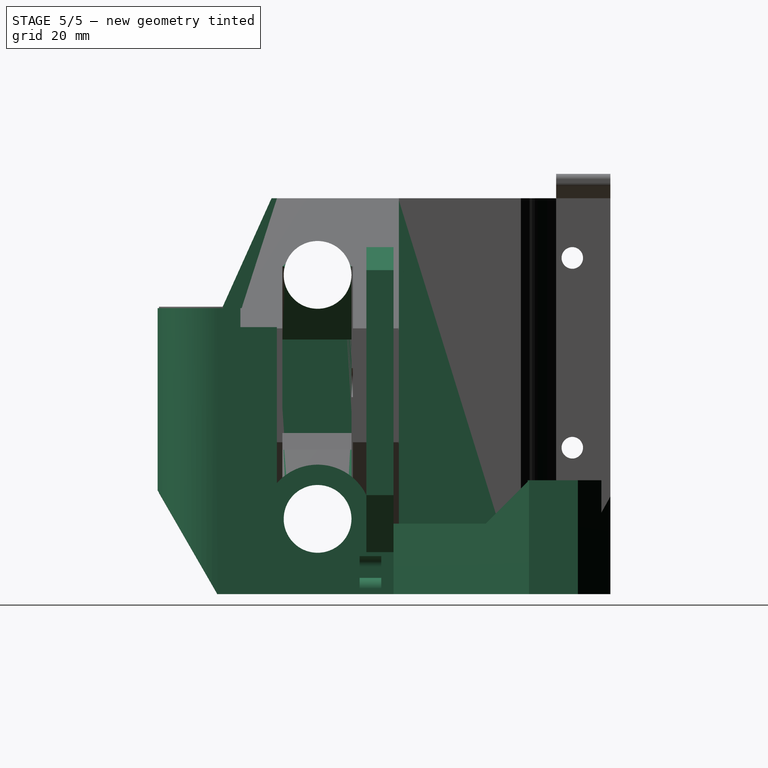
[diagram: stage 5 of 5 — right view after this stage's code; geometry added in this stage tinted green]
FEATURE [Part::FeaturePython] vr_x_idler_v3_01  # a2plus imported part (geometry in sourceFile) (typed FeaturePython)
  fixedPosition = true
  sourceFile = <userpath>/Projects/taz-quiver/Production_parts/Printed_parts/X/x_idler/vr_x_idler_v3.fcstd
  timeLastImport = 1.53356e+09
  updateColors = true
FEATURE [Part::FeaturePython] vr_x_motor_v4_1_01  # a2plus imported part (geometry in sourceFile) (typed FeaturePython)
  Placement = pos=(51.5012,30.1304,36.5) rot=(1,0,0;3.14159rad)
  fixedPosition = false
  sourceFile = <userpath>/Projects/taz-quiver/Production_parts/Printed_parts/X/x_motor/vr_x_motor_v4.1.fcstd
  timeLastImport = 1.53419e+09
  updateColors = true
FEATURE [Part::Mirroring] Part__Mirroring  label="vr_x_motor_v4_1_01 (Mirror #1)"
  Base = (0,0,0)
  Normal = (1,0,0)
  Placement = pos=(123.751,47.3696,-36.5) rot=(0,0,1;0rad)
  Source = -> vr_x_motor_v4_1_01
FEATURE [Part::FeaturePython] Z_belt_anchor_v1_01  # a2plus imported part (geometry in sourceFile) (typed FeaturePython)
  Placement = pos=(15.5986,0.282714,-0.255907) rot=(0.57735,0.57735,0.57735;2.0944rad)
  fixedPosition = false
  sourceFile = <userpath>/Projects/taz-quiver/Production_parts/Printed_parts/belt_anchor/Z_belt_anchor_v1.fcstd
  timeLastImport = 1.53659e+09
  updateColors = true
FEATURE [Sketcher::SketchObject] Sketch032
  ExternalGeometry = -> [Fillet004]
  MapMode = 5
  Placement = pos=(0,0,70) rot=(0,0,1;0rad)
  Support = -> [Fillet004]
  sketch-geometry (2):
    g0: Circle CenterX=12.25 CenterY=29.5 CenterZ=0 NormalX=0 NormalY=0 NormalZ=1 AngleXU=0 Radius=3.35
    g1: Circle CenterX=12.25 CenterY=29.5 CenterZ=0 NormalX=0 NormalY=0 NormalZ=1 AngleXU=0 Radius=2.35
  constraints (4):
    c: Coincident(g0,g-3)
    c: Coincident(g1,g0)
    c: Equal(g0,g-3)
    c: Equal(g1,g-4)
FEATURE [PartDesign::Pad] Pad005
  BaseFeature = -> Fillet004
  Length = 2
  Length2 = 100
  Profile = -> Sketch032
  Refine = true
  Reversed = true
  Type = 0
FEATURE [Sketcher::SketchObject] Sketch033
  ExternalGeometry = -> [Pad005]
  MapMode = 5
  Placement = pos=(0,0,70) rot=(0,0,1;0rad)
  Support = -> [Pad005]
  sketch-geometry (1):
    g0: Circle CenterX=12.25 CenterY=29.5 CenterZ=0 NormalX=0 NormalY=0 NormalZ=1 AngleXU=0 Radius=2.875
  constraints (2):
    c: Coincident(g0,g-3)
    c: Radius(g0) = 2.875
FEATURE [PartDesign::Pocket] Pocket024
  BaseFeature = -> Pad005
  Length = 0.75
  Length2 = 100
  Profile = -> Sketch033
  Refine = true
  Type = 0
FEATURE [Sketcher::SketchObject] Sketch034
  ExternalGeometry = -> [Pocket024]
  MapMode = 5
  Placement = pos=(16.75,-8.164e-13,3.97e-14) rot=(-0.57735,0.57735,0.57735;4.18879rad)
  Support = -> [Pocket024]
  sketch-geometry (4):
    g0: Circle CenterX=-37.5 CenterY=45 CenterZ=0 NormalX=0 NormalY=0 NormalZ=1 AngleXU=0 Radius=2.875
    g1: Circle CenterX=-47 CenterY=45 CenterZ=0 NormalX=0 NormalY=0 NormalZ=1 AngleXU=0 Radius=2.875
    g2: Circle CenterX=-47 CenterY=33 CenterZ=0 NormalX=0 NormalY=0 NormalZ=1 AngleXU=0 Radius=2.875
    g3: Circle CenterX=-37.5 CenterY=33 CenterZ=0 NormalX=0 NormalY=0 NormalZ=1 AngleXU=0 Radius=2.875
  constraints (8):
    c: Coincident(g0,g-6)
    c: Coincident(g1,g-3)
    c: Coincident(g2,g-4)
    c: Coincident(g3,g-5)
    c: Radius(g0) = 2.875
    c: Equal(g0,g3)
    c: Equal(g0,g2)
    c: Equal(g0,g1)
FEATURE [PartDesign::Pocket] Pocket025
  BaseFeature = -> Pocket024
  Length = 0.75
  Length2 = 100
  Profile = -> Sketch034
  Refine = true
  Type = 0
FEATURE [Sketcher::SketchObject] Sketch035
  ExternalGeometry = -> [Pocket025]
  MapMode = 5
  Placement = pos=(0,0,1.8e-15) rot=(1,0,0;3.14159rad)
  Support = -> [Pocket025]
  sketch-geometry (1):
    g0: Circle CenterX=12.25 CenterY=-29.5 CenterZ=0 NormalX=0 NormalY=0 NormalZ=1 AngleXU=0 Radius=2.875
  constraints (2):
    c: Coincident(g0,g-3)
    c: Radius(g0) = 2.875
FEATURE [PartDesign::Pocket] Pocket026
  BaseFeature = -> Pocket025
  Length = 2.1
  Length2 = 100
  Profile = -> Sketch035
  Refine = true
  Type = 0
FEATURE [Sketcher::SketchObject] Sketch036
  ExternalGeometry = -> [Pocket026]
  MapMode = 5
  Placement = pos=(3e-16,0,2.1) rot=(1,0,0;3.14159rad)
  Support = -> [Pocket026]
  sketch-geometry (2):
    g0: Circle CenterX=12.25 CenterY=-29.5 CenterZ=0 NormalX=0 NormalY=0 NormalZ=1 AngleXU=0 Radius=2.6125
    g1: Circle CenterX=12.25 CenterY=-29.5 CenterZ=0 NormalX=0 NormalY=0 NormalZ=1 AngleXU=0 Radius=2.875
  constraints (4):
    c: Coincident(g1,g0)
    c: Equal(g-3,g1)
    c: Coincident(g0,g-3)
    c: Radius(g0) = 2.6125
FEATURE [PartDesign::Pad] Pad006
  BaseFeature = -> Pocket026
  Length = 0.35
  Length2 = 100
  Profile = -> Sketch036
  Refine = true
  Type = 0
FEATURE [Sketcher::SketchObject] Sketch037
  ExternalGeometry = -> [Pad006]
  MapMode = 5
  Placement = pos=(0,0,52.75) rot=(0,0,1;0rad)
  Support = -> [Pad006]
  sketch-geometry (7):
    g0: ArcOfCircle CenterX=16.5 CenterY=2.89986 CenterZ=0 NormalX=0 NormalY=0 NormalZ=1 AngleXU=0 Radius=2 StartAngle=3.14159 EndAngle=5.07956
    g1: ArcOfCircle CenterX=9.5 CenterY=2.89986 CenterZ=0 NormalX=0 NormalY=0 NormalZ=1 AngleXU=0 Radius=2 StartAngle=4.34522 EndAngle=6.28319
    g2: LineSegment StartX=11.5 StartY=3.64188 StartZ=0 EndX=14.5 EndY=3.64188 EndZ=0
    g3: LineSegment StartX=14.5 StartY=3.64188 StartZ=0 EndX=14.5 EndY=2.89986 EndZ=0
    g4: LineSegment [constr] StartX=14.5 StartY=2.89986 StartZ=0 EndX=11.5 EndY=2.89986 EndZ=0
    g5: LineSegment StartX=11.5 StartY=2.89986 StartZ=0 EndX=11.5 EndY=3.64188 EndZ=0
    g6: ArcOfCircle CenterX=13 CenterY=12 CenterZ=0 NormalX=0 NormalY=0 NormalZ=1 AngleXU=0 Radius=11.75 StartAngle=4.34522 EndAngle=5.07956
  constraints (20):
    c: PointOnObject(g1,g-4)
    c: Coincident(g2,g3)
    c: Coincident(g4,g5)
    c: Coincident(g5,g2)
    c: Horizontal(g2)
    c: Horizontal(g4)
    c: Vertical(g3)
    c: Vertical(g5)
    c: PointOnObject(g2,g-3)
    c: DistanceX(g2,g2) = 3
    c: PointOnObject(g0,g-4)
    c: Equal(g1,g0)
    c: Radius(g0) = 2
    c: Coincident(g0,g4)
    c: Tangent(g6,g0) = -1.5708
    c: Tangent(g6,g1) = -1.5708
    c: Tangent(g1,g5) = -1.5708
    c: Coincident(g0,g3)
    c: PointOnObject(g2,g-3)
    c: Equal(g6,g-4)
FEATURE [PartDesign::Pocket] Pocket027
  BaseFeature = -> Pad006
  Length = 5
  Length2 = 100
  Profile = -> Sketch037
  Refine = true
  Type = 1
FEATURE [PartDesign::Body] Body
  Group = -> [Sketch,Pad,Sketch001,Sketch002,Sketch003,Sketch004,Sketch005,Sketch006,Sketch007,Sketch008,Sketch009,Sketch010,Sketch011,Sketch012,Sketch013,Sketch014,Sketch015,Sketch016,Sketch017,Sketch018,Sketch019,Sketch020,Pocket,Pocket001,Pocket002,Pocket003,Pocket004,Pocket005,Pocket006,Pocket007,Pocket008,Pocket009,Pocket010,Pocket011,Pocket012,Pocket013,Pocket014,Pocket015,Pocket016,Pocket017,Pocket018,+40 more]
  Origin = -> Origin
  Tip = -> Pocket027
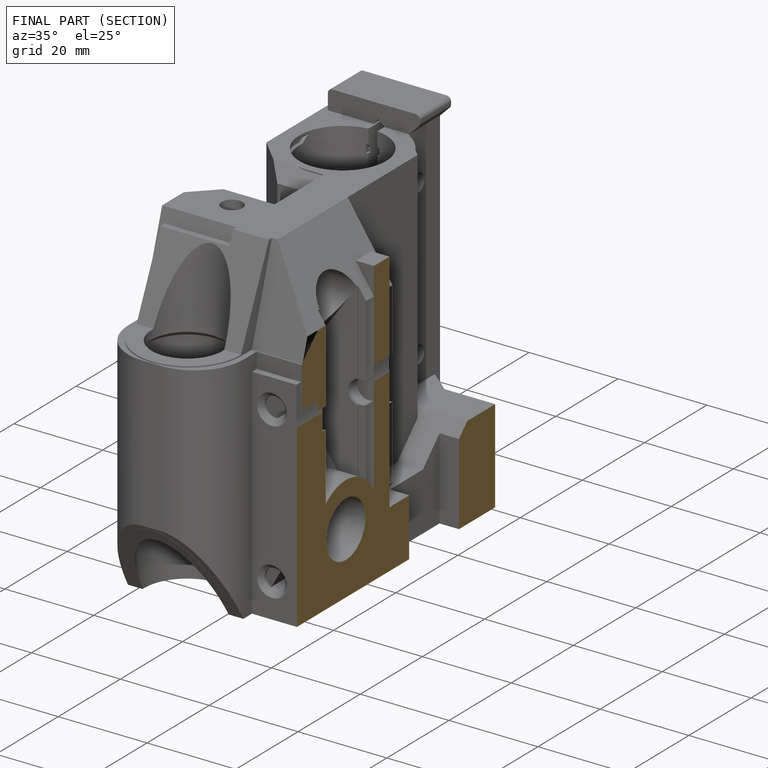
[diagram: finished part — half-section view (interior)]
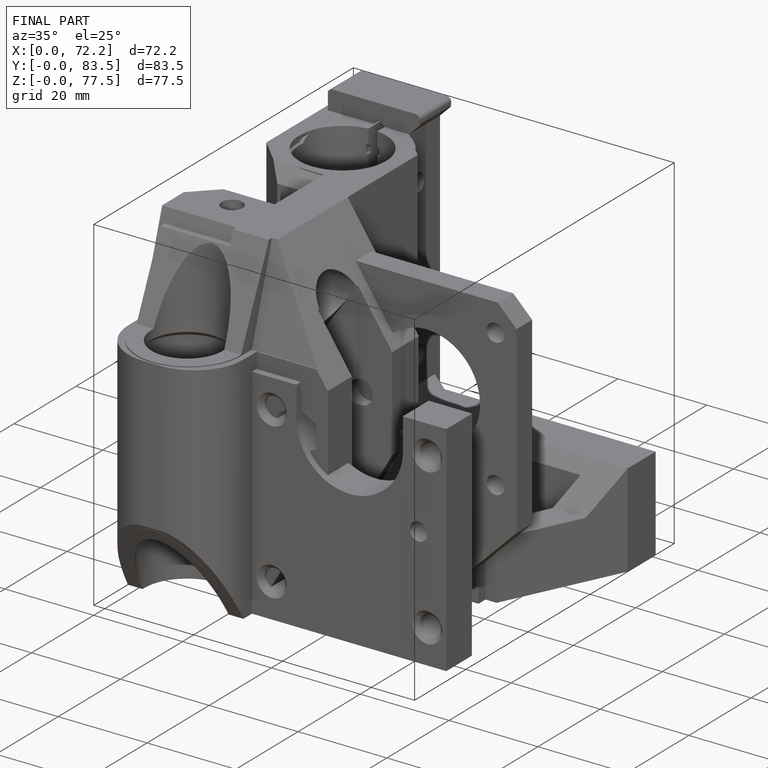
[diagram: finished part — iso view with bounding-box wireframe]
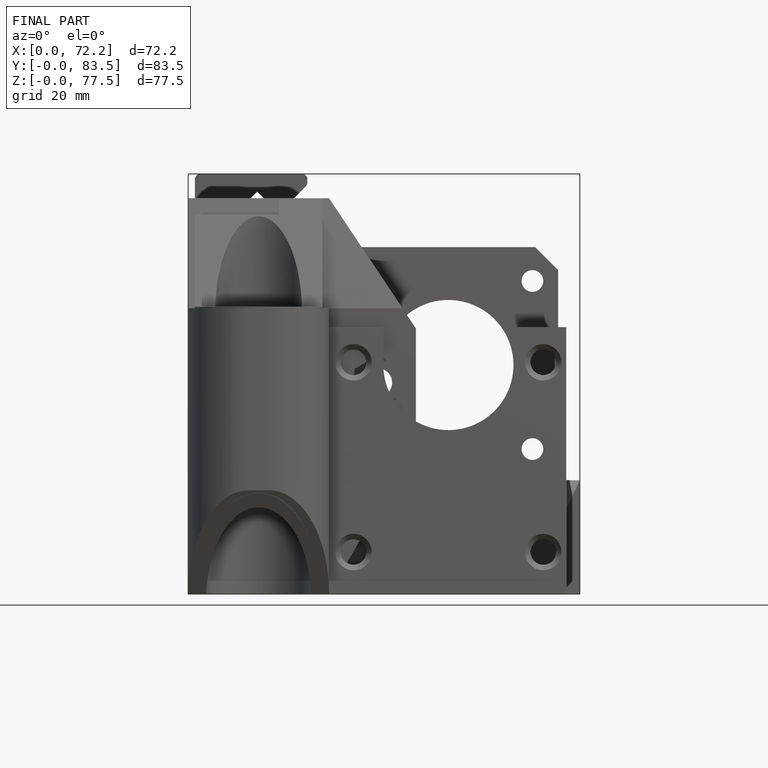
[diagram: finished part — front view with bounding-box wireframe]
